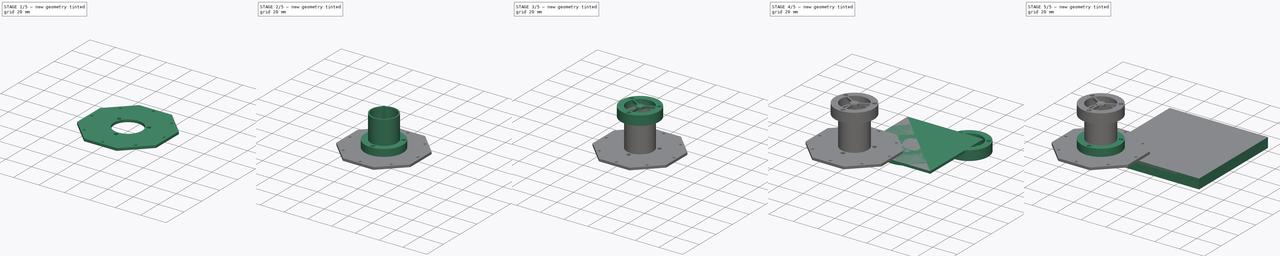
[diagram: build sequence overview — one tinted view per stage of 5, left to right]
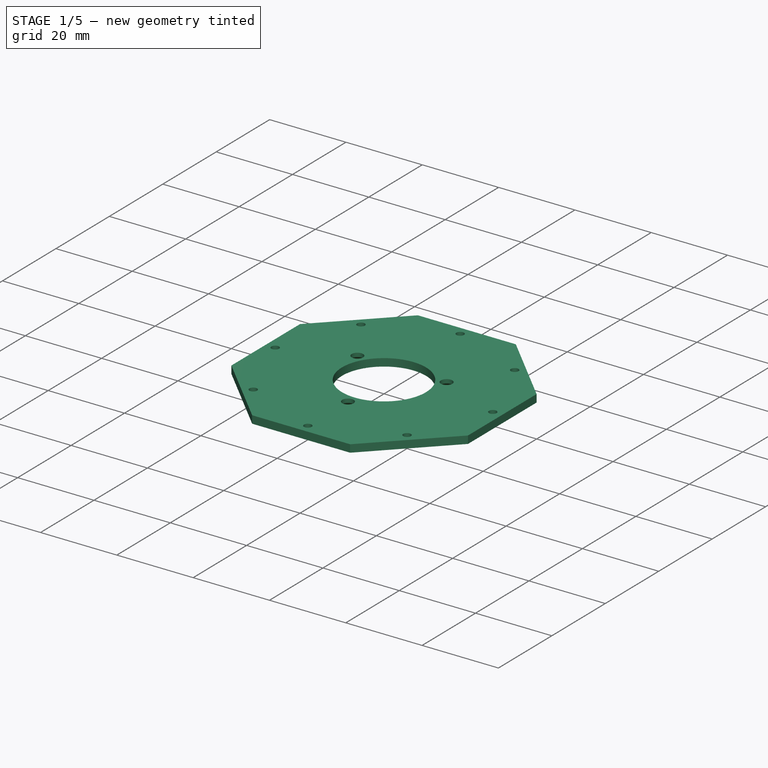
[diagram: stage 1 of 5 — iso view after this stage's code; geometry added in this stage tinted green]
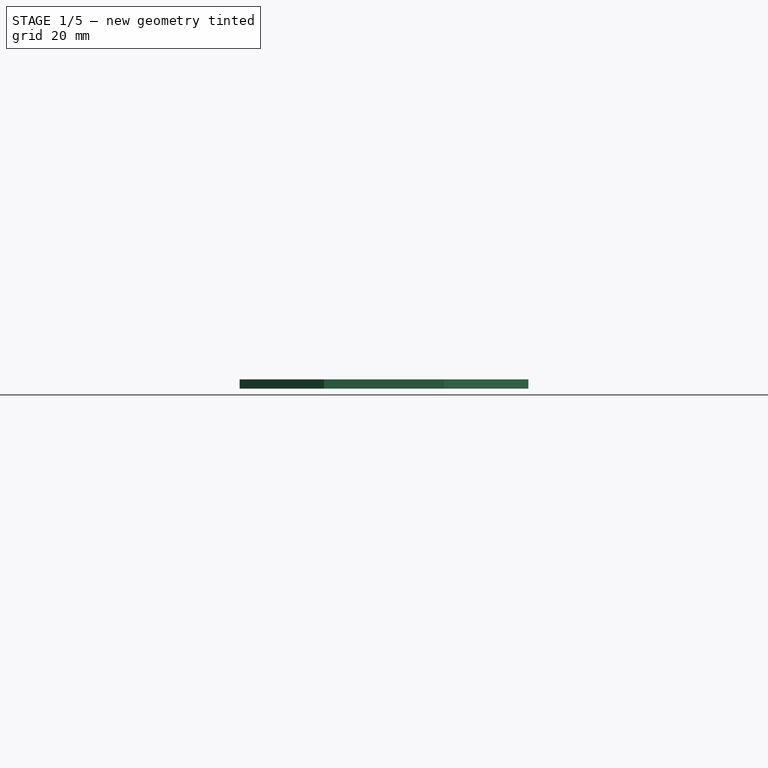
[diagram: stage 1 of 5 — front view after this stage's code; geometry added in this stage tinted green]
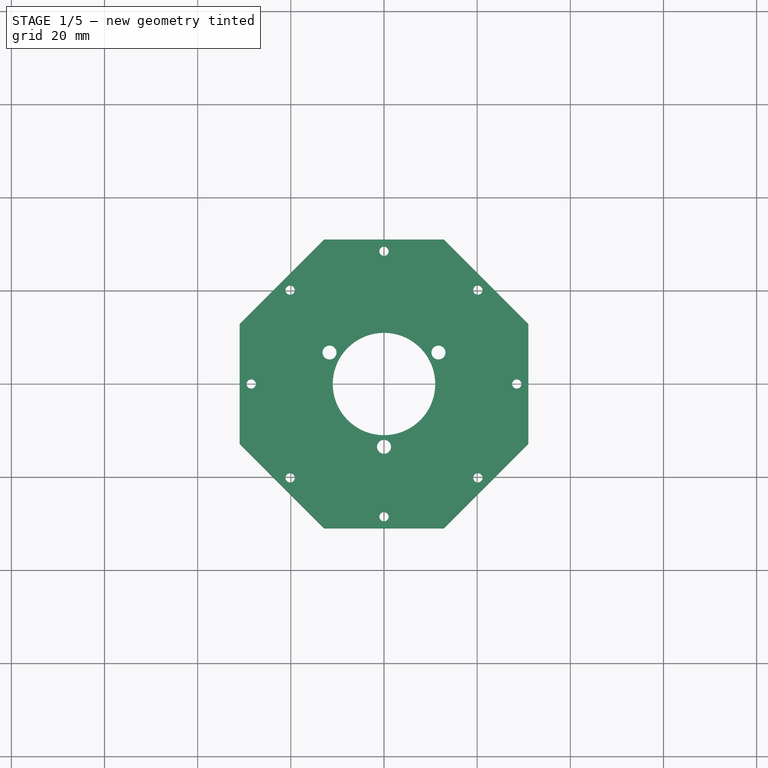
[diagram: stage 1 of 5 — top view after this stage's code; geometry added in this stage tinted green]
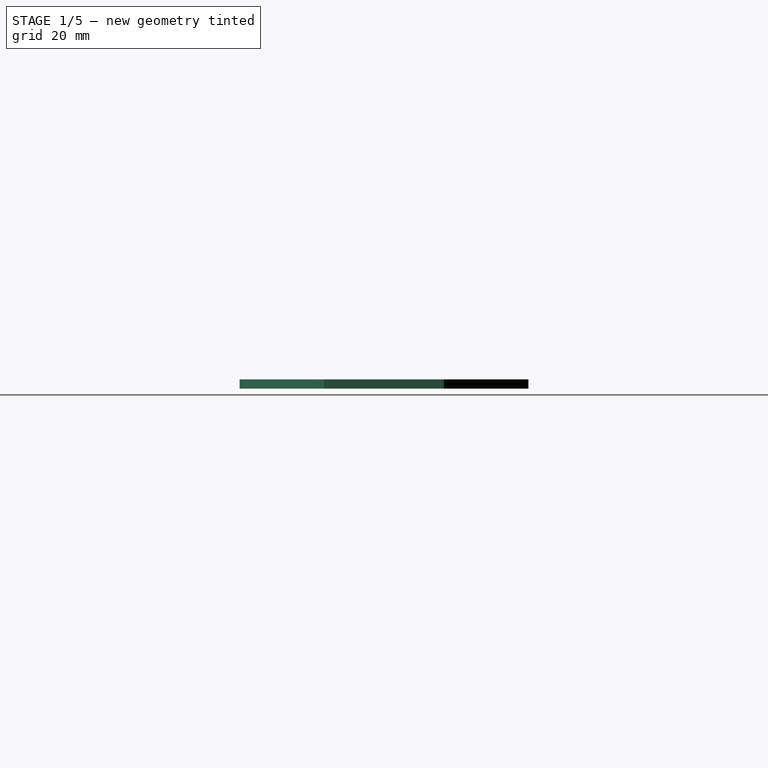
[diagram: stage 1 of 5 — right view after this stage's code; geometry added in this stage tinted green]
FCSTD DOCUMENT  (FreeCAD 0.18R16093 (Git))
Label: Oktagon
License: All rights reserved
LicenseURL: http://en.wikipedia.org/wiki/All_rights_reserved
objects: Path::FeaturePython×27, Sketcher::SketchObject×11, PartDesign::Pad×6, PartDesign::Pocket×5, PartDesign::Body×5, Part::FeaturePython×4, App::FeaturePython×2, App::DocumentObjectGroup×2, Path::FeatureCompoundPython×2, Part::Chamfer×2, Spreadsheet::Sheet×1, Part::Mirroring×1
note: 50 computed .brp shape members not serialized (recipe doc carries the construction recipe); baked Part::Feature solids carry a one-line shape summary decoded from their .brp

FEATURE [Sketcher::SketchObject] Sketch
  MapMode = 5
  Support = -> [XY_Plane]
  expr: Constraints[79] = Parameter.mhr
  expr: Constraints[70] = Parameter.LA
  expr: Constraints[29] = Parameter.OB
  sketch-geometry (34):
    g0: LineSegment StartX=-31 StartY=12.8406 StartZ=0 EndX=-31 EndY=-12.8406 EndZ=0
    g1: LineSegment StartX=-31 StartY=-12.8406 StartZ=0 EndX=-12.8406 EndY=-31 EndZ=0
    g2: LineSegment StartX=-12.8406 StartY=-31 StartZ=0 EndX=12.8406 EndY=-31 EndZ=0
    g3: LineSegment StartX=12.8406 StartY=-31 StartZ=0 EndX=31 EndY=-12.8406 EndZ=0
    g4: LineSegment StartX=31 StartY=-12.8406 StartZ=0 EndX=31 EndY=12.8406 EndZ=0
    g5: LineSegment StartX=31 StartY=12.8406 StartZ=0 EndX=12.8406 EndY=31 EndZ=0
    g6: LineSegment StartX=12.8406 StartY=31 StartZ=0 EndX=-12.8406 EndY=31 EndZ=0
    g7: LineSegment StartX=-12.8406 StartY=31 StartZ=0 EndX=-31 EndY=12.8406 EndZ=0
    g8: LineSegment [constr] StartX=-31 StartY=-12.8406 StartZ=0 EndX=12.8406 EndY=31 EndZ=0
    g9: LineSegment [constr] StartX=-31 StartY=12.8406 StartZ=0 EndX=12.8406 EndY=-31 EndZ=0
    g10: LineSegment [constr] StartX=0 StartY=0 StartZ=0 EndX=20.1525 EndY=-20.1525 EndZ=0
    g11: LineSegment [constr] StartX=0 StartY=0 StartZ=0 EndX=28.5 EndY=0 EndZ=0
    g12: LineSegment [constr] StartX=0 StartY=0 StartZ=0 EndX=20.1525 EndY=20.1525 EndZ=0
    g13: LineSegment [constr] StartX=0 StartY=0 StartZ=0 EndX=0 EndY=28.5 EndZ=0
    g14: LineSegment [constr] StartX=0 StartY=0 StartZ=0 EndX=-20.1525 EndY=20.1525 EndZ=0
    g15: LineSegment [constr] StartX=0 StartY=0 StartZ=0 EndX=-28.5 EndY=0 EndZ=0
    g16: LineSegment [constr] StartX=0 StartY=0 StartZ=0 EndX=-20.1525 EndY=-20.1525 EndZ=0
    g17: LineSegment [constr] StartX=0 StartY=0 StartZ=0 EndX=0 EndY=-28.5 EndZ=0
    g18: LineSegment [constr] StartX=0 StartY=-28.5 StartZ=0 EndX=20.1525 EndY=-20.1525 EndZ=0
    g19: LineSegment [constr] StartX=20.1525 StartY=-20.1525 StartZ=0 EndX=28.5 EndY=0 EndZ=0
    g20: LineSegment [constr] StartX=28.5 StartY=0 StartZ=0 EndX=20.1525 EndY=20.1525 EndZ=0
    g21: LineSegment [constr] StartX=20.1525 StartY=20.1525 StartZ=0 EndX=0 EndY=28.5 EndZ=0
    g22: LineSegment [constr] StartX=0 StartY=28.5 StartZ=0 EndX=-20.1525 EndY=20.1525 EndZ=0
    g23: LineSegment [constr] StartX=-20.1525 StartY=20.1525 StartZ=0 EndX=-28.5 EndY=0 EndZ=0
    g24: LineSegment [constr] StartX=-28.5 StartY=0 StartZ=0 EndX=-20.1525 EndY=-20.1525 EndZ=0
    g25: LineSegment [constr] StartX=-20.1525 StartY=-20.1525 StartZ=0 EndX=0 EndY=-28.5 EndZ=0
    g26: Circle CenterX=28.5 CenterY=0 CenterZ=0 NormalX=0 NormalY=0 NormalZ=1 AngleXU=0 Radius=1
    g27: Circle CenterX=20.1525 CenterY=20.1525 CenterZ=0 NormalX=0 NormalY=0 NormalZ=1 AngleXU=0 Radius=1
    g28: Circle CenterX=0 CenterY=28.5 CenterZ=0 NormalX=0 NormalY=0 NormalZ=1 AngleXU=0 Radius=1
    g29: Circle CenterX=-20.1525 CenterY=20.1525 CenterZ=0 NormalX=0 NormalY=0 NormalZ=1 AngleXU=0 Radius=1
    g30: Circle CenterX=-28.5 CenterY=0 CenterZ=0 NormalX=0 NormalY=0 NormalZ=1 AngleXU=0 Radius=1
    g31: Circle CenterX=-20.1525 CenterY=-20.1525 CenterZ=0 NormalX=0 NormalY=0 NormalZ=1 AngleXU=0 Radius=1
    g32: Circle CenterX=0 CenterY=-28.5 CenterZ=0 NormalX=0 NormalY=0 NormalZ=1 AngleXU=0 Radius=1
    g33: Circle CenterX=20.1525 CenterY=-20.1525 CenterZ=0 NormalX=0 NormalY=0 NormalZ=1 AngleXU=0 Radius=1
  constraints (83):
    c: Coincident(g0,g1)
    c: Coincident(g1,g2)
    c: Coincident(g2,g3)
    c: Coincident(g3,g4)
    c: Coincident(g4,g5)
    c: Coincident(g5,g6)
    c: Coincident(g6,g7)
    c: Coincident(g7,g0)
    c: Equal(g6,g7)
    c: Equal(g6, g0-g4) x5
    c: Equal(g5,g6)
    c: Parallel(g6,g2)
    c: Parallel(g4,g0)
    c: Vertical(g4)
    c: Horizontal(g2)
    c: Symmetric(g4,g3,g-1)
    c: Symmetric(g6,g5,g-2)
    c: Symmetric(g2,g1,g-2)
    c: Symmetric(g0,g0,g-1)
    c: Coincident(g8,g0)
    c: Coincident(g8,g5)
    c: Coincident(g9,g0)
    c: Coincident(g9,g2)
    c: Equal(g8,g9)
    c: Angle(g9,g8) = 1.5708
    c: Distance(g0,g2) = 62
    c: Coincident(g10,g-1)
    c: Coincident(g11,g-1)
    c: Coincident(g12,g-1)
    c: Coincident(g13,g-1)
    c: Coincident(g14,g-1)
    c: Coincident(g15,g-1)
    c: Coincident(g16,g-1)
    c: Coincident(g17,g-1)
    c: Equal(g17,g10)
    c: Equal(g10,g11)
    c: Equal(g11,g12)
    c: Equal(g12,g13)
    c: Equal(g13,g14)
    c: Equal(g14,g15)
    c: Equal(g15,g16)
    c: Equal(g16,g17)
    c: Coincident(g18,g17)
    c: Coincident(g18,g10)
    c: Coincident(g19,g10)
    c: Coincident(g19,g11)
    c: Coincident(g20,g11)
    c: Coincident(g20,g12)
    c: Coincident(g21,g12)
    c: Coincident(g21,g13)
    c: Coincident(g22,g13)
    c: Coincident(g22,g14)
    c: Coincident(g23,g14)
    c: Coincident(g23,g15)
    c: Coincident(g24,g15)
    c: Coincident(g24,g16)
    c: Coincident(g25,g16)
    c: Coincident(g25,g17)
    c: Equal(g18,g19)
    c: Equal(g19,g20)
    c: Equal(g20,g21)
    c: Equal(g21,g22)
    c: Equal(g22,g23)
    c: Equal(g23,g24)
    c: Equal(g24,g25)
    c: Vertical(g17)
    c: Distance(g11,g15) = 57
    c: Coincident(g26,g11)
    c: Coincident(g27,g12)
    c: Coincident(g28,g13)
    c: Coincident(g29,g14)
    c: Coincident(g30,g15)
    c: Coincident(g31,g16)
    c: Coincident(g32,g17)
    c: Coincident(g33,g10)
    c: Radius(g32) = 1
    c: Equal(g32,g33)
    c: Equal(g32,g26)
    c: Equal(g32,g31)
    c: Equal(g32,g30)
    c: Equal(g32,g27)
    c: Equal(g32,g28)
    c: Equal(g32,g29)
FEATURE [Spreadsheet::Sheet] Spreadsheet  label="Parameter"
  cells = A1=Oktagon Breite; B1(OB)=62; A2=Basisplatte hoehe; B2(bph)=2; A3=Rohr AD; B3(RohrAD)=22; C3=Rohwanddicke; D3(rwd)=1; A4=Lochabstand; B4(LA)=57; C4=suction tube diam; D4(std)=2; A5=Mountingholerad; B5(mhr)=1; C5=suction tube ws; D5(stws)=0.2; A6=Rohhalterung extra Radius; B6(rher)=5; A7=Rohrhalterung hoehe; B7(rhh)=1e-05; A8=adapter loch radius; B8(alr)==B3 / 2 + 2.5; A9=RingHoehe; B9(rhe)=8
FEATURE [PartDesign::Pad] Pad
  Length = 2
  Length2 = 100
  Profile = -> Sketch
  Type = 0
  expr: Length = Parameter.bph
FEATURE [Sketcher::SketchObject] Sketch001
  MapMode = 5
  Placement = pos=(0,0,2) rot=(0,0,1;0rad)
  Support = -> [Pad]
  expr: Constraints[1] = Parameter.RohrAD / 2 + Parameter.rher
  sketch-geometry (1):
    g0: Circle CenterX=0 CenterY=0 CenterZ=0 NormalX=0 NormalY=0 NormalZ=1 AngleXU=0 Radius=16
  constraints (2):
    c: Coincident(g0,g-1)
    c: Radius(g0) = 16
FEATURE [PartDesign::Pad] Pad001
  BaseFeature = -> Pad
  Length = 1e-05
  Length2 = 100
  Profile = -> Sketch001
  Type = 0
  expr: Length = Parameter.rhh
FEATURE [Sketcher::SketchObject] Sketch002
  MapMode = 5
  Placement = pos=(0,0,2.00001) rot=(0,0,1;0rad)
  Support = -> [Pad001]
  expr: Constraints[13] = Spreadsheet.alr
  expr: Constraints[1] = Parameter.RohrAD / 2
  sketch-geometry (7):
    g0: Circle CenterX=0 CenterY=0 CenterZ=0 NormalX=0 NormalY=0 NormalZ=1 AngleXU=0 Radius=11
    g1: Circle CenterX=11.6913 CenterY=6.75 CenterZ=0 NormalX=0 NormalY=0 NormalZ=1 AngleXU=0 Radius=1.5
    g2: Circle CenterX=0 CenterY=-13.5 CenterZ=0 NormalX=0 NormalY=0 NormalZ=1 AngleXU=0 Radius=1.5
    g3: Circle CenterX=-11.6913 CenterY=6.75 CenterZ=0 NormalX=0 NormalY=0 NormalZ=1 AngleXU=0 Radius=1.5
    g4: LineSegment [constr] StartX=0 StartY=0 StartZ=0 EndX=11.6913 EndY=6.75 EndZ=0
    g5: LineSegment [constr] StartX=0 StartY=0 StartZ=0 EndX=-11.6913 EndY=6.75 EndZ=0
    g6: LineSegment [constr] StartX=0 StartY=0 StartZ=0 EndX=0 EndY=-13.5 EndZ=0
  constraints (17):
    c: Coincident(g0,g-1)
    c: Radius(g0) = 11
    c: Coincident(g4,g-1)
    c: Coincident(g4,g1)
    c: Coincident(g5,g3)
    c: Coincident(g6,g-1)
    c: Coincident(g6,g2)
    c: Equal(g5,g4)
    c: Coincident(g5,g-1)
    c: Equal(g5,g6)
    c: Vertical(g6)
    c: Angle(g6,g4) = 2.0944
    c: Angle(g5,g6) = 2.0944
    c: Distance(g5) = 13.5
    c: Radius(g2) = 1.5
    c: Equal(g2,g1)
    c: Equal(g2,g3)
FEATURE [PartDesign::Pocket] Pocket
  BaseFeature = -> Pad001
  Length = 2.00001
  Length2 = 100
  Profile = -> Sketch002
  Type = 0
  expr: Length = Parameter.bph + Parameter.rhh
FEATURE [PartDesign::Body] Body004  label="suction tube"
  Group = -> [Sketch010,Pad005]
  Origin = -> Origin004
  Tip = -> Pad005
FEATURE [Part::Chamfer] Chamfer001  label="Base_champfered"
  Base = -> Pocket
  Edges = 3 edges r=1: [Edge17,Edge18,Edge25]
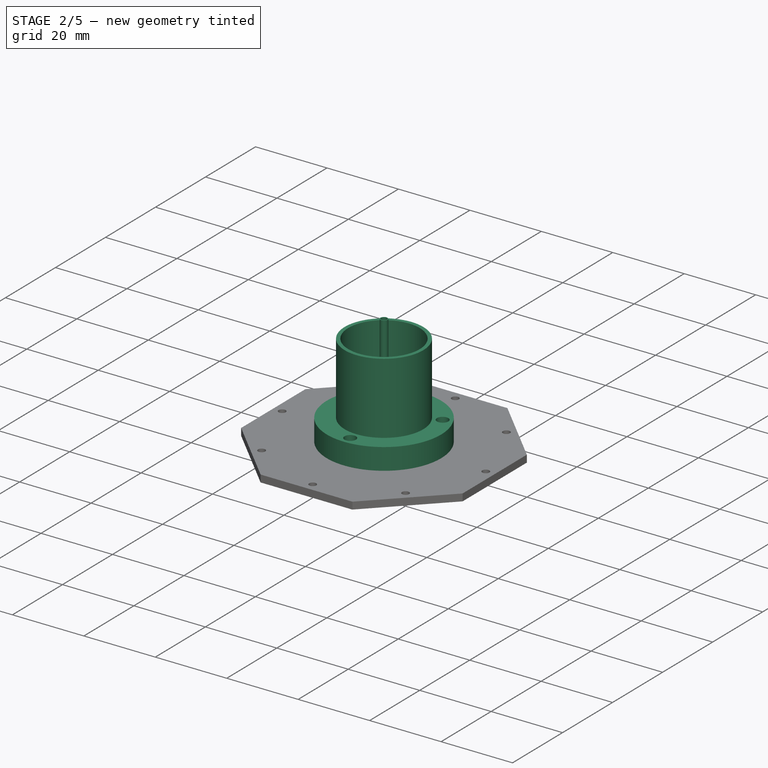
[diagram: stage 2 of 5 — iso view after this stage's code; geometry added in this stage tinted green]
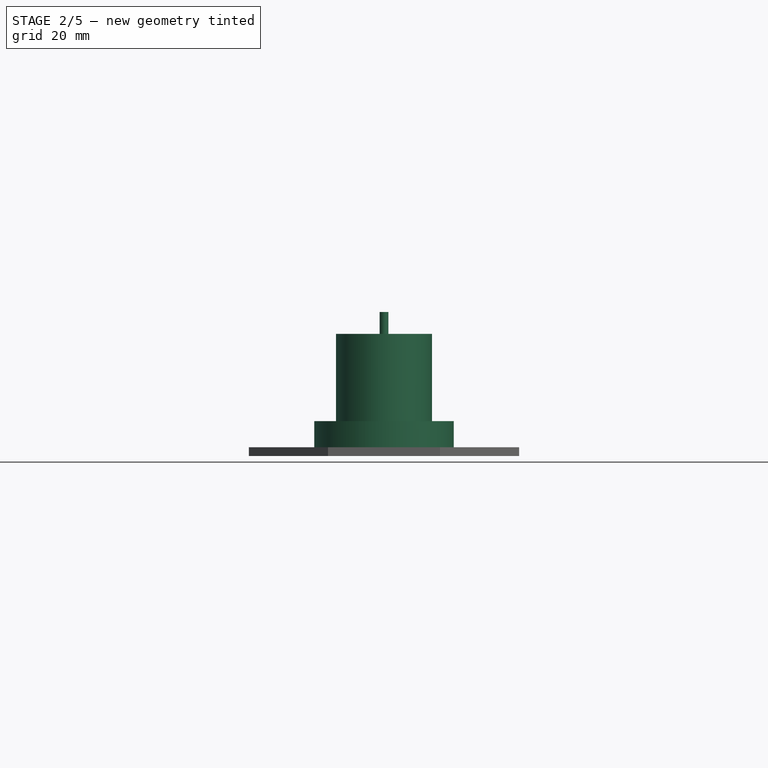
[diagram: stage 2 of 5 — front view after this stage's code; geometry added in this stage tinted green]
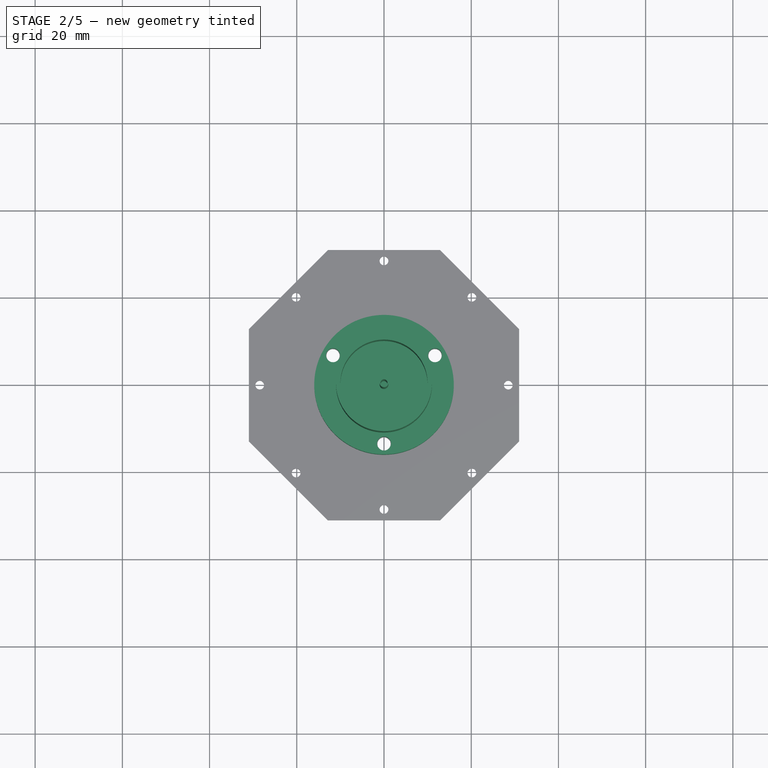
[diagram: stage 2 of 5 — top view after this stage's code; geometry added in this stage tinted green]
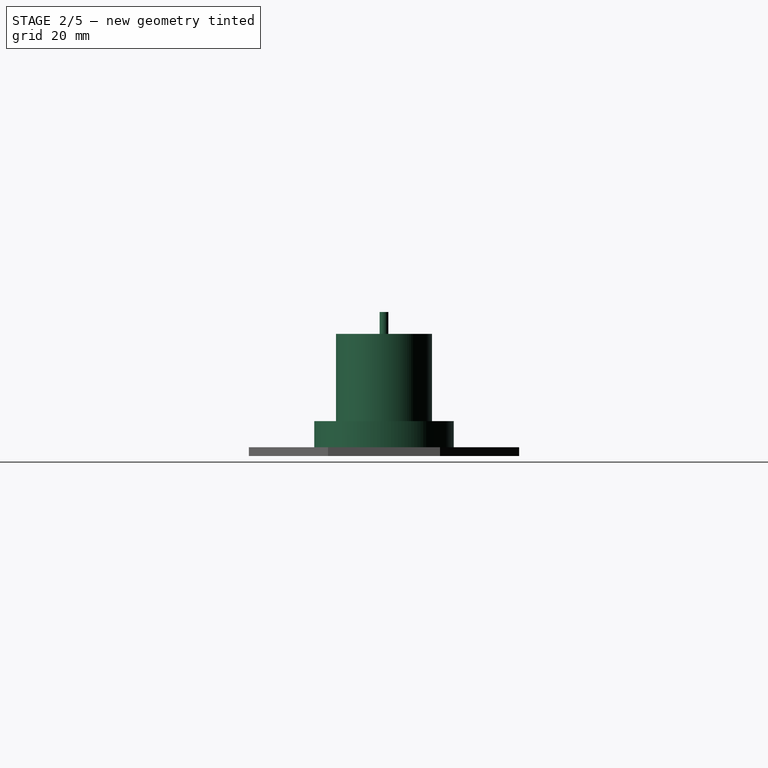
[diagram: stage 2 of 5 — right view after this stage's code; geometry added in this stage tinted green]
FEATURE [Path::FeaturePython] T2__fraiser_one_001  label="T2: fraiser one 001"  # Path/CAM operation (typed FeaturePython)
  HorizFeed = 1
  HorizRapid = 0
  SpindleDir = 0
  SpindleSpeed = 10000
  ToolNumber = 2
  VertFeed = 1
  VertRapid = 0
  expr: HorizRapid = SetupSheet001.HorizRapid
  expr: VertRapid = SetupSheet001.VertRapid
FEATURE [Path::FeaturePython] T9__Drill3mm  label="T9: Drill3mm"  # Path/CAM operation (typed FeaturePython)
  HorizFeed = 10
  HorizRapid = 0
  SpindleDir = 0
  SpindleSpeed = 10000
  ToolNumber = 9
  VertFeed = 3
  VertRapid = 0
  expr: HorizRapid = SetupSheet001.HorizRapid
  expr: VertRapid = SetupSheet001.VertRapid
FEATURE [Path::FeaturePython] Drilling002  # Path/CAM operation (typed FeaturePython)
  Active = true
  AddTipLength = false
  Base = -> [Clone001]
  ClearanceHeight = 4.99999
  DwellEnabled = false
  DwellTime = 0
  FinalDepth = -1
  OpFinalDepth = -1e-05
  OpStartDepth = 0.99999
  OpStockZMax = -1e-05
  OpStockZMin = -2.00001
  OpToolDiameter = 3
  PeckDepth = 0
  PeckEnabled = false
  RetractHeight = 10
  ReturnLevel = 0
  SafeHeight = 2.99999
  StartDepth = 0
  ToolController = -> T9__Drill3mm
  expr: ClearanceHeight = OpStockZMax + SetupSheet001.ClearanceHeightOffset
  expr: SafeHeight = OpStockZMax + SetupSheet001.SafeHeightOffset
FEATURE [Path::FeaturePython] Drilling003  # Path/CAM operation (typed FeaturePython)
  Active = true
  AddTipLength = false
  Base = -> [Clone001]
  ClearanceHeight = 4.99999
  DwellEnabled = false
  DwellTime = 0
  FinalDepth = -3
  OpFinalDepth = 0
  OpStartDepth = 1
  OpStockZMax = -1e-05
  OpStockZMin = -2.00001
  OpToolDiameter = 3
  PeckDepth = 0
  PeckEnabled = false
  RetractHeight = 10
  ReturnLevel = 0
  SafeHeight = 2.99999
  StartDepth = 0
  ToolController = -> T9__Drill3mm
  expr: ClearanceHeight = OpStockZMax + SetupSheet001.ClearanceHeightOffset
  expr: SafeHeight = OpStockZMax + SetupSheet001.SafeHeightOffset
FEATURE [Path::FeaturePython] T14__ching_chang_chin  label="T14: ching chang chin"  # Path/CAM operation (typed FeaturePython)
  HorizFeed = 3
  HorizRapid = 0
  SpindleDir = 0
  SpindleSpeed = 3500
  ToolNumber = 14
  VertFeed = 1
  VertRapid = 0
  expr: HorizRapid = SetupSheet001.HorizRapid
  expr: VertRapid = SetupSheet001.VertRapid
FEATURE [Path::FeaturePython] Profile_Edges  # Path/CAM operation (typed FeaturePython)
  Active = true
  AreaParams:
    OpenMode = 0
    Angle = 45.0
    MinArcPoints = 4
    Coplanar = 0
    Tolerance = 1e-07
    CleanDistance = 0.0
    PocketExtraOffset = 0.0
    RoundPrecision = 0.0
    AngleShift = 0.0
    SubjectFill = 0
    PocketMode = 0
    PocketLastStepover = 0.0
    Simplify = False
    SectionTolerance = 1e-06
    MaxArcPoints = 100
    Offset = -1.27
    Accuracy = 0.01
    LastStepover = 0.0
    PocketStepover = 0.0
    ClipFill = 0
    ToolRadius = 1.0
    Outline = False
    ClipperScale = 10000000.0
    FromCenter = False
    Explode = False
    EndType = 0
    Shift = 0.0
    ExtraPass = 0
    Project = False
    JoinType = 0
    Thicken = False
    Stepdown = 1.0
    SectionMode = 2
    MiterLimit = 2.0
    Deflection = 0.01
    Reorient = True
    FitArcs = True
    SectionCount = -1
    SectionOffset = 0.0
    Stepover = 0.0
    Unit = 1.0
    Fill = 0
  Base = -> [Clone001]
  ClearanceHeight = 4.99999
  Direction = 0
  FinalDepth = -2.1
  JoinType = 0
  MiterLimit = 0.1
  OffsetExtra = 0
  OpFinalDepth = 0
  OpStartDepth = 1.1
  OpStockZMax = -1e-05
  OpStockZMin = -2.00001
  OpToolDiameter = 2.54
  PathParams = {'resume_height': 2.99999, 'feedrate': 3.0, 'verbose': True, 'orientation': 1, 'return_end': True, 'preamble': False, 'retraction': 4.99999, 'feedrate_v': 1.0}
  SafeHeight = 2.99999
  Side = 1
  StartDepth = 0
  StartPoint = (0,0,0)
  StepDown = 1.1
  ToolController = -> T14__ching_chang_chin
  UseComp = true
  UseStartPoint = false
  expr: ClearanceHeight = OpStockZMax + SetupSheet001.ClearanceHeightOffset
  expr: SafeHeight = OpStockZMax + SetupSheet001.SafeHeightOffset
  expr: StepDown = 1.1
FEATURE [Path::FeaturePython] Profile_Faces001  # Path/CAM operation (typed FeaturePython)
  Active = true
  AreaParams:
    OpenMode = 0
    Angle = 45.0
    MinArcPoints = 4
    Coplanar = 0
    Tolerance = 1e-07
    CleanDistance = 0.0
    PocketExtraOffset = 0.0
    RoundPrecision = 0.0
    AngleShift = 0.0
    SubjectFill = 0
    PocketMode = 0
    PocketLastStepover = 0.0
    Simplify = False
    SectionTolerance = 1e-06
    MaxArcPoints = 100
    Offset = 1.27
    Accuracy = 0.01
    LastStepover = 0.0
    PocketStepover = 0.0
    ClipFill = 0
    ToolRadius = 1.0
    Outline = False
    ClipperScale = 10000000.0
    FromCenter = False
    Explode = False
    EndType = 0
    Shift = 0.0
    ExtraPass = 0
    Project = False
    JoinType = 0
    Thicken = False
    Stepdown = 1.0
    SectionMode = 2
    MiterLimit = 2.0
    Deflection = 0.01
    Reorient = True
    FitArcs = True
    SectionCount = -1
    SectionOffset = 0.0
    Stepover = 0.0
    Unit = 1.0
    Fill = 0
  Base = -> [Clone001]
  ClearanceHeight = 4.99999
  Direction = 0
  FinalDepth = -2
  JoinType = 0
  MiterLimit = 0.1
  OffsetExtra = 0
  OpFinalDepth = -1e-05
  OpStartDepth = 0.99999
  OpStockZMax = -1e-05
  OpStockZMin = -2.00001
  OpToolDiameter = 2.54
  PathParams = {'resume_height': 2.99999, 'feedrate': 3.0, 'verbose': True, 'orientation': 1, 'return_end': True, 'preamble': False, 'retraction': 4.99999, 'feedrate_v': 1.0}
  SafeHeight = 2.99999
  Side = 0
  StartDepth = 0
  StartPoint = (0,0,0)
  StepDown = 1
  ToolController = -> T14__ching_chang_chin
  UseComp = true
  UseStartPoint = false
  processCircles = false
  processHoles = false
  processPerimeter = true
  expr: ClearanceHeight = OpStockZMax + SetupSheet001.ClearanceHeightOffset
  expr: SafeHeight = OpStockZMax + SetupSheet001.SafeHeightOffset
  expr: StepDown = 1
FEATURE [Path::FeaturePython] RampEntryDressup003  # Path/CAM operation (typed FeaturePython)
  Angle = 60
  Base = -> Profile_Edges
  CustomFeedRate = 0
  DressupStartDepth = 1.1
  Method = 2
  RampFeedRate = 0
  UseStartDepth = false
FEATURE [Path::FeaturePython] RampEntryDressup004  # Path/CAM operation (typed FeaturePython)
  Angle = 60
  Base = -> Profile_Faces001
  CustomFeedRate = 0
  DressupStartDepth = 0
  Method = 2
  RampFeedRate = 0
  UseStartDepth = false
FEATURE [Path::FeaturePython] TagDressup001  # Path/CAM operation (typed FeaturePython)
  Angle = 45
  Base = -> RampEntryDressup004
  Height = 1
  Positions = (3) [(-1.27,31,0),(53.63,8,0),(8.01,53.64,0)]
  Radius = 0
  SegmentationFactor = 50
  Width = 2
FEATURE [Path::FeatureCompoundPython] Operations001  # Path/CAM operation (typed FeaturePython)
  Group = -> [Drilling002,Drilling003,RampEntryDressup003,TagDressup001]
  UsePlacements = false
FEATURE [Path::FeaturePython] Job001  label="Job_base"  # Path/CAM operation (typed FeaturePython)
  GeometryTolerance = 0.01
  Model = -> Model001
  Operations = -> Operations001
  PostProcessor = 2
  SetupSheet = -> SetupSheet001
  Stock = -> Stock002
  ToolController = -> [Default_Tool001,T2__fraiser_one_001,T9__Drill3mm,T14__ching_chang_chin]
FEATURE [Sketcher::SketchObject] Sketch006
  MapMode = 5
  Support = -> [XY_Plane002]
  expr: Constraints[1] = Spreadsheet.RohrAD / 2 + Spreadsheet.rher
  expr: Constraints[14] = 3.2 / 2
  expr: Constraints[13] = (Spreadsheet.RohrAD + Spreadsheet.rher) / 2
  sketch-geometry (7):
    g0: Circle CenterX=0 CenterY=0 CenterZ=0 NormalX=0 NormalY=0 NormalZ=1 AngleXU=0 Radius=16
    g1: Circle CenterX=0 CenterY=-13.5 CenterZ=0 NormalX=0 NormalY=0 NormalZ=1 AngleXU=0 Radius=1.6
    g2: Circle CenterX=11.6913 CenterY=6.75 CenterZ=0 NormalX=0 NormalY=0 NormalZ=1 AngleXU=0 Radius=1.6
    g3: Circle CenterX=-11.6913 CenterY=6.75 CenterZ=0 NormalX=0 NormalY=0 NormalZ=1 AngleXU=0 Radius=1.6
    g4: LineSegment [constr] StartX=-11.6913 StartY=6.75 StartZ=0 EndX=0 EndY=0 EndZ=0
    g5: LineSegment [constr] StartX=0 StartY=0 StartZ=0 EndX=11.6913 EndY=6.75 EndZ=0
    g6: LineSegment [constr] StartX=0 StartY=-13.5 StartZ=0 EndX=0 EndY=0 EndZ=0
  constraints (17):
    c: Coincident(g0,g-1)
    c: Radius(g0) = 16
    c: PointOnObject(g1,g-2)
    c: Coincident(g4,g3)
    c: Coincident(g4,g-1)
    c: Coincident(g5,g-1)
    c: Coincident(g5,g2)
    c: Coincident(g6,g1)
    c: Coincident(g6,g-1)
    c: Angle(g6,g5) = 2.0944
    c: Angle(g4,g6) = 2.0944
    c: Equal(g6,g5)
    c: Equal(g5,g4)
    c: Distance(g6) = 13.5
    c: Radius(g1) = 1.6
    c: Equal(g1,g2)
    c: Equal(g1,g3)
FEATURE [PartDesign::Pad] Pad003
  Length = 8
  Length2 = 100
  Profile = -> Sketch006
  Type = 0
  expr: Length = Spreadsheet.rhe
FEATURE [Sketcher::SketchObject] Sketch009
  MapMode = 5
  Support = -> [XY_Plane003]
  expr: Constraints[3] = Spreadsheet.RohrAD / 2 - Spreadsheet.rwd
  expr: Constraints[2] = Spreadsheet.RohrAD / 2
  sketch-geometry (2):
    g0: Circle CenterX=0 CenterY=0 CenterZ=0 NormalX=0 NormalY=0 NormalZ=1 AngleXU=0 Radius=10
    g1: Circle CenterX=0 CenterY=0 CenterZ=0 NormalX=0 NormalY=0 NormalZ=1 AngleXU=0 Radius=11
  constraints (4):
    c: Coincident(g0,g-1)
    c: Coincident(g1,g0)
    c: Radius(g1) = 11
    c: Radius(g0) = 10
FEATURE [PartDesign::Pad] Pad004
  Length = 28
  Length2 = 100
  Profile = -> Sketch009
  Type = 0
FEATURE [PartDesign::Body] Body003  label="Smokestack"
  Group = -> [Sketch009,Pad004]
  Origin = -> Origin003
  Placement = pos=(0,0,4) rot=(0,0,1;0rad)
  Tip = -> Pad004
FEATURE [Sketcher::SketchObject] Sketch010
  MapMode = 5
  Support = -> [XY_Plane004]
  expr: Constraints[3] = Spreadsheet.std / 2 - Spreadsheet.stws
  expr: Constraints[2] = Spreadsheet.std / 2
  sketch-geometry (2):
    g0: Circle CenterX=0 CenterY=0 CenterZ=0 NormalX=0 NormalY=0 NormalZ=1 AngleXU=0 Radius=1
    g1: Circle CenterX=0 CenterY=0 CenterZ=0 NormalX=0 NormalY=0 NormalZ=1 AngleXU=0 Radius=0.8
  constraints (4):
    c: Coincident(g0,g-1)
    c: Coincident(g1,g0)
    c: Radius(g0) = 1
    c: Radius(g1) = 0.8
FEATURE [PartDesign::Pad] Pad005
  Length = 33
  Length2 = 100
  Profile = -> Sketch010
  Type = 0
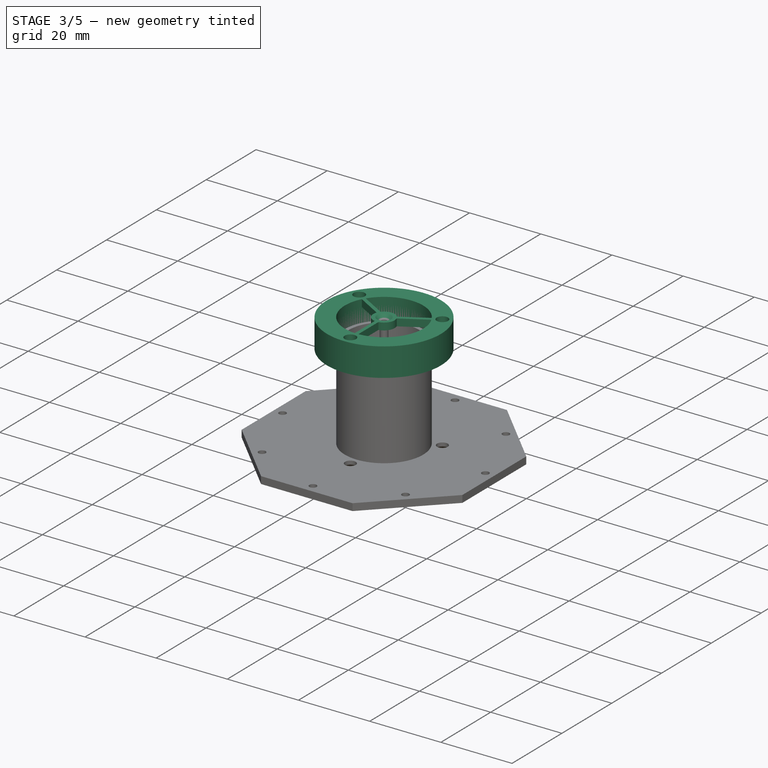
[diagram: stage 3 of 5 — iso view after this stage's code; geometry added in this stage tinted green]
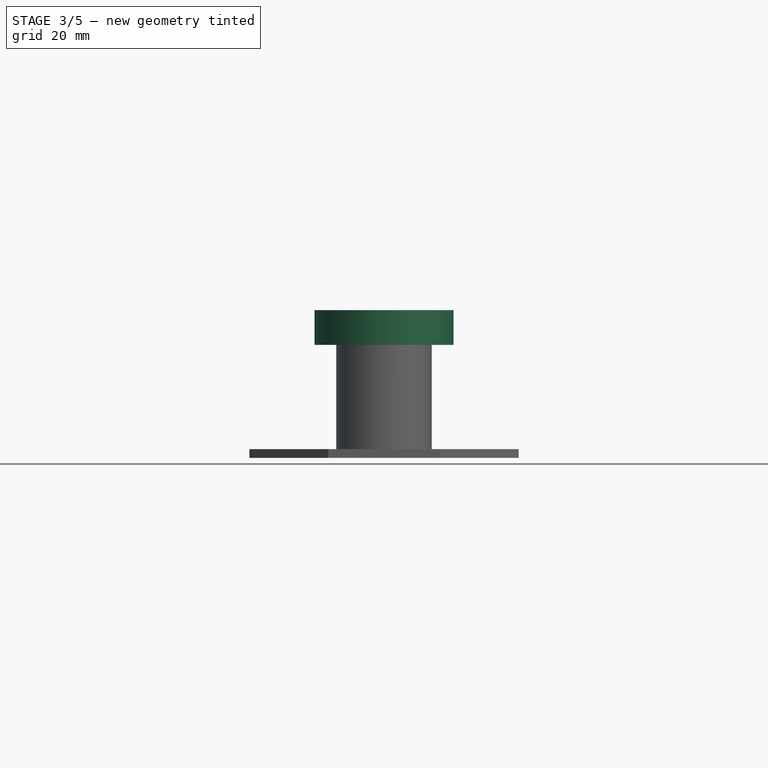
[diagram: stage 3 of 5 — front view after this stage's code; geometry added in this stage tinted green]
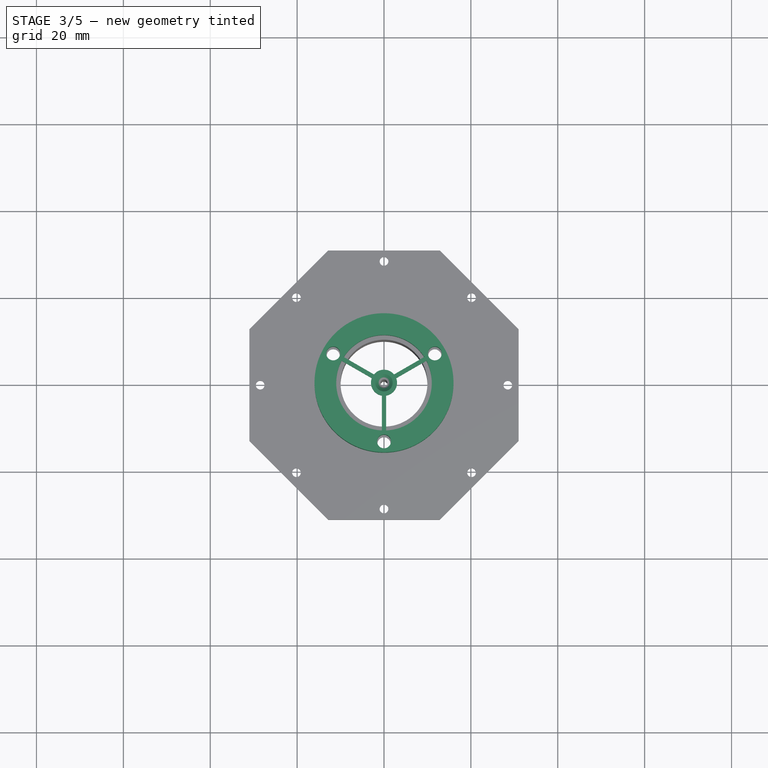
[diagram: stage 3 of 5 — top view after this stage's code; geometry added in this stage tinted green]
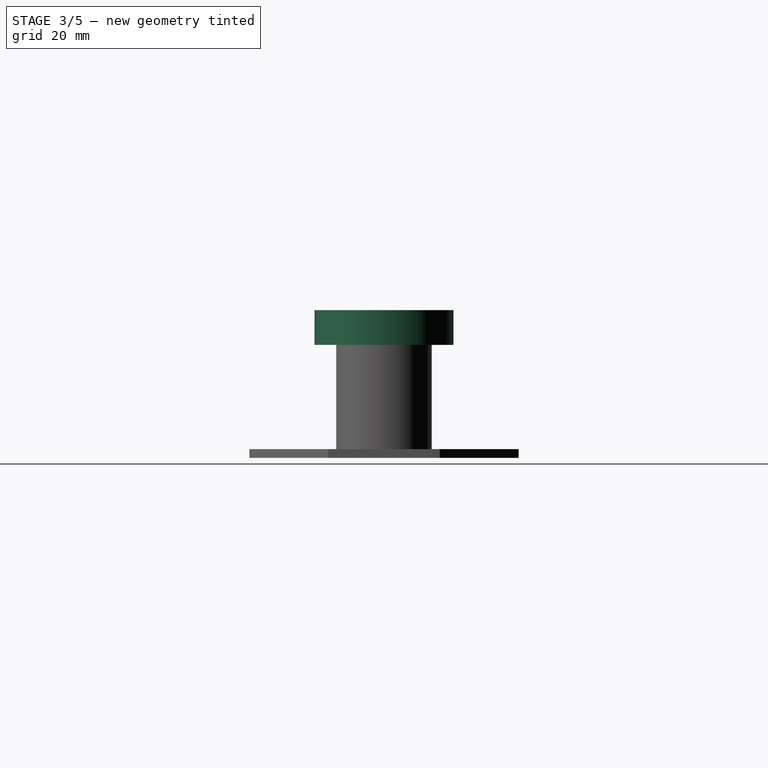
[diagram: stage 3 of 5 — right view after this stage's code; geometry added in this stage tinted green]
FEATURE [Sketcher::SketchObject] Sketch007
  MapMode = 5
  Placement = pos=(0,0,8) rot=(0,0,1;0rad)
  Support = -> [Pad003]
  expr: Constraints[1] = Spreadsheet.RohrAD / 2
  sketch-geometry (1):
    g0: Circle CenterX=0 CenterY=0 CenterZ=0 NormalX=0 NormalY=0 NormalZ=1 AngleXU=0 Radius=11
  constraints (2):
    c: Coincident(g0,g-1)
    c: Radius(g0) = 11
FEATURE [PartDesign::Pocket] Pocket003
  BaseFeature = -> Pad003
  Length = 6
  Length2 = 100
  Profile = -> Sketch007
  Type = 0
  expr: Length = 6
FEATURE [Sketcher::SketchObject] Sketch008
  MapMode = 5
  Placement = pos=(0,0,2) rot=(0,0,1;0rad)
  Support = -> [Pocket003]
  expr: Constraints[14] = Spreadsheet.RohrAD / 2
  expr: Constraints[1] = Spreadsheet.std / 2
  expr: Constraints[10] = Spreadsheet.RohrAD / 2
  sketch-geometry (18):
    g0: Circle CenterX=0 CenterY=0 CenterZ=0 NormalX=0 NormalY=0 NormalZ=1 AngleXU=0 Radius=1
    g1: LineSegment [constr] StartX=0 StartY=0 StartZ=0 EndX=0 EndY=-11 EndZ=0
    g2: LineSegment [constr] StartX=0 StartY=0 StartZ=0 EndX=9.52628 EndY=5.5 EndZ=0
    g3: LineSegment [constr] StartX=0 StartY=0 StartZ=0 EndX=-9.52628 EndY=5.5 EndZ=0
    g4: Circle [constr] CenterX=3e-16 CenterY=0 CenterZ=0 NormalX=0 NormalY=0 NormalZ=1 AngleXU=0 Radius=3
    g5: Circle [constr] CenterX=0 CenterY=0 CenterZ=0 NormalX=0 NormalY=0 NormalZ=1 AngleXU=0 Radius=11
    g6: LineSegment StartX=-9.26643 StartY=5.92733 StartZ=0 EndX=-2.31174 EndY=1.91203 EndZ=0
    g7: LineSegment StartX=-9.76643 StartY=5.0613 StartZ=0 EndX=-2.81174 EndY=1.04601 EndZ=0
    g8: LineSegment StartX=2.31174 StartY=1.91203 StartZ=0 EndX=9.26643 EndY=5.92733 EndZ=0
    g9: LineSegment StartX=2.81174 StartY=1.04601 StartZ=0 EndX=9.76643 EndY=5.0613 EndZ=0
    g10: LineSegment StartX=-0.5 StartY=-2.95804 StartZ=0 EndX=-0.5 EndY=-10.9886 EndZ=0
    g11: LineSegment StartX=0.5 StartY=-10.9886 StartZ=0 EndX=0.5 EndY=-2.95804 EndZ=0
    g12: ArcOfCircle CenterX=0 CenterY=0 CenterZ=0 NormalX=0 NormalY=0 NormalZ=1 AngleXU=0 Radius=3 StartAngle=0.691047 EndAngle=2.45055
    g13: ArcOfCircle CenterX=0 CenterY=5e-16 CenterZ=0 NormalX=0 NormalY=0 NormalZ=1 AngleXU=0 Radius=3 StartAngle=4.87984 EndAngle=6.63934
    g14: ArcOfCircle CenterX=0 CenterY=-3e-16 CenterZ=0 NormalX=0 NormalY=0 NormalZ=1 AngleXU=0 Radius=3 StartAngle=2.78544 EndAngle=4.54494
    g15: ArcOfCircle CenterX=0 CenterY=0 CenterZ=0 NormalX=0 NormalY=0 NormalZ=1 AngleXU=0 Radius=11 StartAngle=0.569069 EndAngle=2.57252
    g16: ArcOfCircle CenterX=0 CenterY=0 CenterZ=0 NormalX=0 NormalY=0 NormalZ=1 AngleXU=0 Radius=11 StartAngle=4.75786 EndAngle=6.76131
    g17: ArcOfCircle CenterX=0 CenterY=0 CenterZ=0 NormalX=0 NormalY=0 NormalZ=1 AngleXU=0 Radius=11 StartAngle=2.66346 EndAngle=4.66692
  constraints (54):
    c: Coincident(g0,g-1)
    c: Radius(g0) = 1
    c: Vertical(g1)
    c: Coincident(g2,g-1)
    c: Coincident(g3,g-1)
    c: Equal(g1,g3)
    c: Equal(g3,g2)
    c: Angle(g1,g2) = 2.0944
    c: Angle(g3,g1) = 2.0944
    c: Coincident(g1,g-1)
    c: Distance(g1) = 11
    c: Coincident(g4,g-1)
    c: Radius(g4) = 3
    c: Coincident(g5,g-1)
    c: Radius(g5) = 11
    c: PointOnObject(g6,g5)
    c: PointOnObject(g6,g4)
    c: PointOnObject(g7,g5)
    c: PointOnObject(g7,g4)
    c: PointOnObject(g8,g4)
    c: PointOnObject(g9,g4)
    c: PointOnObject(g10,g4)
    c: PointOnObject(g11,g5)
    c: PointOnObject(g11,g4)
    c: Parallel(g11,g1)
    c: Parallel(g1,g10)
    c: Parallel(g7,g3)
    c: Parallel(g3,g6)
    c: Parallel(g8,g2)
    c: Parallel(g2,g9)
    c: Distance(g9,g2) = 0.5
    c: Distance(g8,g2) = 0.5
    c: Distance(g11,g1) = 0.5
    c: Distance(g10,g1) = 0.5
    c: Distance(g6,g3) = 0.5
    c: Distance(g7,g3) = 0.5
    c: Coincident(g12,g-1)
    c: Coincident(g12,g8)
    c: Coincident(g12,g6)
    c: Coincident(g13,g-1)
    c: Coincident(g13,g9)
    c: Coincident(g13,g11)
    c: Coincident(g14,g-1)
    c: Coincident(g14,g10)
    c: Coincident(g14,g7)
    c: Coincident(g15,g-1)
    c: Coincident(g15,g6)
    c: Coincident(g15,g8)
    c: Coincident(g16,g-1)
    c: Coincident(g16,g9)
    c: Coincident(g16,g11)
    c: Coincident(g17,g-1)
    c: Coincident(g17,g10)
    c: Coincident(g17,g7)
FEATURE [PartDesign::Pocket] Pocket004
  BaseFeature = -> Pocket003
  Length = 2
  Length2 = 100
  Profile = -> Sketch008
  Type = 0
FEATURE [PartDesign::Body] Body002  label="Adonis_ringbottom"
  Group = -> [Sketch006,Pad003,Sketch007,Pocket003,Sketch008,Pocket004]
  Origin = -> Origin002
  Placement = pos=(0,0,2) rot=(0,0,1;0rad)
  Tip = -> Pocket004
  expr: Placement.Base.z = Spreadsheet.bph
FEATURE [Part::Mirroring] Part__Mirroring  label="Adonis_ringbottom001"
  Base = (0,0,0)
  Normal = (0,0,1)
  Placement = pos=(0,0,2) rot=(0,0,1;0rad)
  Source = -> Body002
FEATURE [Part::Chamfer] Chamfer  label="Adonis_Head"
  Base = -> Part__Mirroring
  Edges = 1 edges r=1: [Edge14]
  Placement = pos=(0,0,34) rot=(0,0,1;0rad)
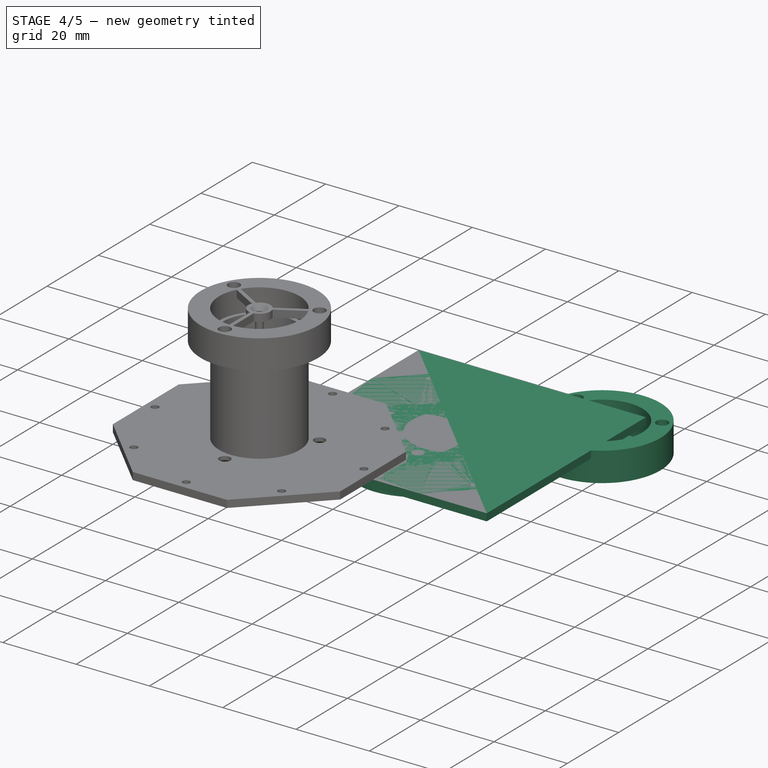
[diagram: stage 4 of 5 — iso view after this stage's code; geometry added in this stage tinted green]
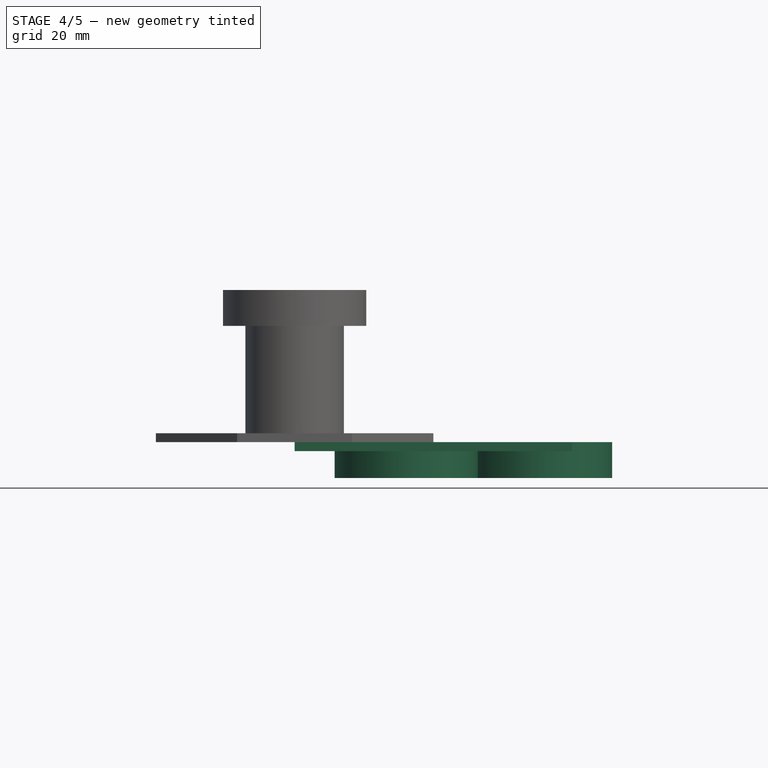
[diagram: stage 4 of 5 — front view after this stage's code; geometry added in this stage tinted green]
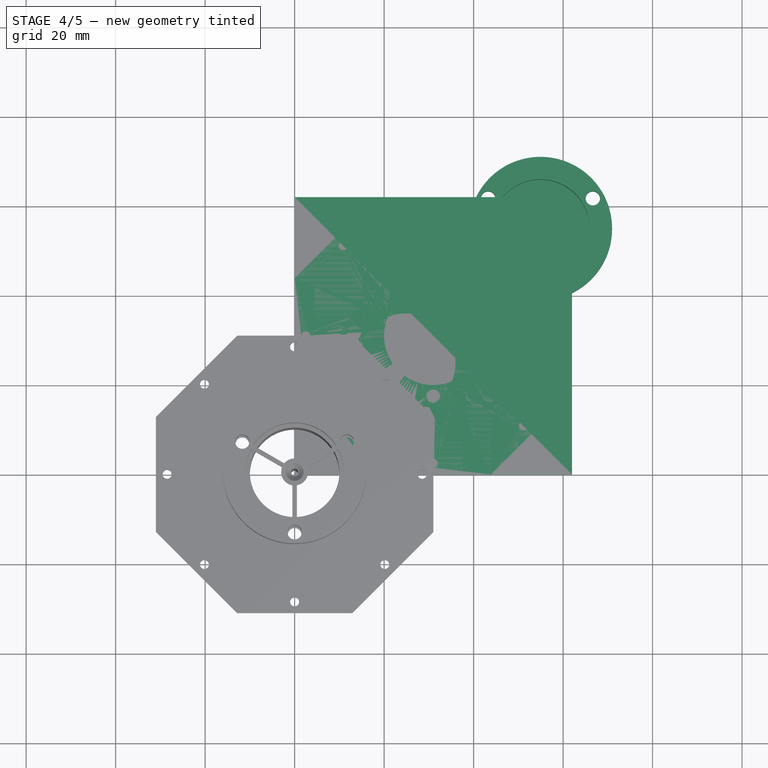
[diagram: stage 4 of 5 — top view after this stage's code; geometry added in this stage tinted green]
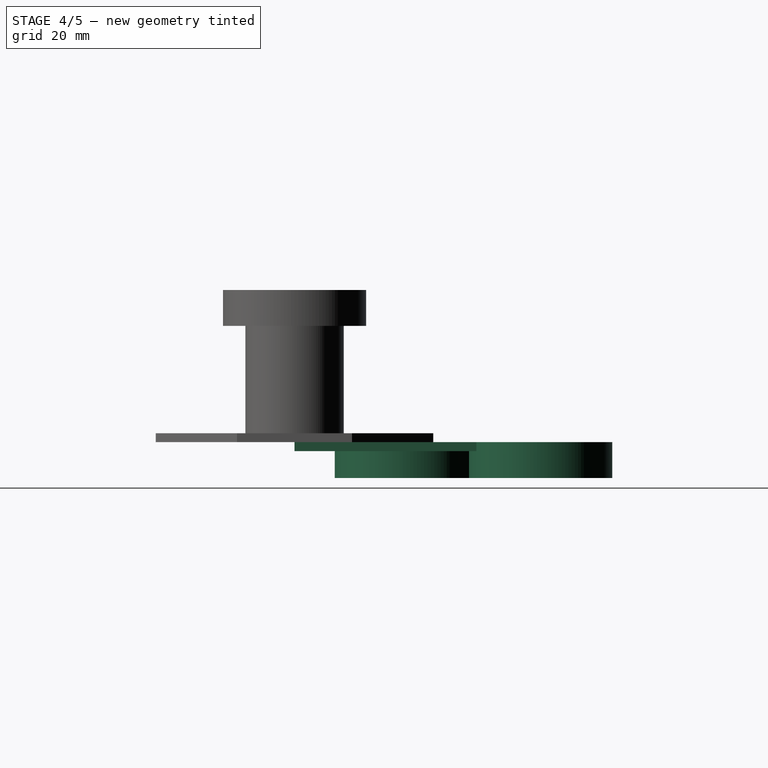
[diagram: stage 4 of 5 — right view after this stage's code; geometry added in this stage tinted green]
FEATURE [PartDesign::Body] Body001  label="Adonis_ring"
  Group = -> [Sketch003,Pad002,Sketch004,Pocket001,Sketch005,Pocket002]
  Origin = -> Origin001
  Placement = pos=(0,0,2) rot=(0,0,1;0rad)
  Tip = -> Pocket002
  expr: Placement.Base.z = Spreadsheet.bph
FEATURE [App::FeaturePython] SetupSheet  # Path/CAM operation (typed FeaturePython)
  ClearanceHeightExpression = OpStockZMax+SetupSheet.ClearanceHeightOffset
  ClearanceHeightOffset = 5
  FinalDepthExpression = OpFinalDepth
  HorizRapid = 0
  SafeHeightExpression = OpStockZMax+SetupSheet.SafeHeightOffset
  SafeHeightOffset = 3
  StartDepthExpression = OpStartDepth
  StepDownExpression = OpToolDiameter
  VertRapid = 0
FEATURE [Part::FeaturePython] Clone  label="Model-Array"  # WARN: FeaturePython — macro-defined, semantics opaque (R4)
  AttacherType = Attacher::AttachEngine3D
  Fuse = false
  PathResource = Model
  Placement = pos=(24.9493,25,-10) rot=(0,0,1;0rad)
  Scale = (1,1,1)
FEATURE [Path::FeaturePython] Drilling  label="centerhole"  # Path/CAM operation (typed FeaturePython)
  Active = true
  AddTipLength = false
  Base = -> [Clone]
  ClearanceHeight = 5
  DwellEnabled = false
  DwellTime = 0
  FinalDepth = -8.3
  OpFinalDepth = -6
  OpStartDepth = 0
  OpStockZMax = 0
  OpStockZMin = -8
  OpToolDiameter = 2
  PeckDepth = 3
  PeckEnabled = true
  RetractHeight = 10
  ReturnLevel = 0
  SafeHeight = 3
  StartDepth = 0
  ToolController = -> T8__2mm_drill
  expr: ClearanceHeight = OpStockZMax + SetupSheet.ClearanceHeightOffset
  expr: SafeHeight = OpStockZMax + SetupSheet.SafeHeightOffset
FEATURE [Path::FeaturePython] Drilling001  label="befest_drll"  # Path/CAM operation (typed FeaturePython)
  Active = true
  AddTipLength = false
  Base = -> [Clone]
  ClearanceHeight = 5
  DwellEnabled = false
  DwellTime = 0
  FinalDepth = -8.3
  OpFinalDepth = 0
  OpStartDepth = 1
  OpStockZMax = 0
  OpStockZMin = -8
  OpToolDiameter = 2.5
  PeckDepth = 0
  PeckEnabled = true
  RetractHeight = 10
  ReturnLevel = 0
  SafeHeight = 3
  StartDepth = 0
  ToolController = -> T7__drill2_5
  expr: ClearanceHeight = OpStockZMax + SetupSheet.ClearanceHeightOffset
  expr: SafeHeight = OpStockZMax + SetupSheet.SafeHeightOffset
FEATURE [Path::FeaturePython] MillFace  # Path/CAM operation (typed FeaturePython)
  Active = true
  AreaParams:
    OpenMode = 0
    Angle = 45.0
    MinArcPoints = 4
    Coplanar = 0
    Tolerance = 1e-07
    CleanDistance = 0.0
    PocketExtraOffset = 0.0
    RoundPrecision = 0.0
    AngleShift = 0.0
    SubjectFill = 0
    PocketMode = 2
    PocketLastStepover = 0.0
    Simplify = False
    SectionTolerance = 1e-06
    MaxArcPoints = 100
    Offset = 0.0
    Accuracy = 0.01
    LastStepover = 0.0
    PocketStepover = 2.975
    ClipFill = 0
    ToolRadius = 2.975
    Outline = False
    ClipperScale = 10000000.0
    FromCenter = True
    Explode = False
    EndType = 0
    Shift = 0.0
    ExtraPass = 0
    Project = False
    JoinType = 0
    Thicken = False
    Stepdown = 1.0
    SectionMode = 2
    MiterLimit = 2.0
    Deflection = 0.01
    Reorient = True
    FitArcs = True
    SectionCount = -1
    SectionOffset = 0.0
    Stepover = 0.0
    Unit = 1.0
    Fill = 0
  Base = -> [Clone]
  BoundaryShape = 0
  ClearanceHeight = 5
  CutMode = 0
  ExtraOffset = 0
  FinalDepth = -6
  FinishDepth = 0
  KeepToolDown = false
  MinTravel = false
  OffsetPattern = 1
  OpFinalDepth = -6
  OpStartDepth = 0
  OpStockZMax = 0
  OpStockZMin = -8
  OpToolDiameter = 5.95
  PathParams = {'resume_height': 3.0, 'feedrate': 1.0, 'verbose': True, 'orientation': 1, 'return_end': True, 'preamble': False, 'retraction': 5.0, 'feedrate_v': 1.0}
  SafeHeight = 3
  StartAt = 0
  StartDepth = 0
  StartPoint = (0,0,0)
  StepDown = 1
  StepOver = 50
  ToolController = -> T2__fraiser_one_
  UseStartPoint = false
  ZigZagAngle = 45
  expr: ClearanceHeight = OpStockZMax + SetupSheet.ClearanceHeightOffset
  expr: SafeHeight = OpStockZMax + SetupSheet.SafeHeightOffset
  expr: StepDown = 1
  expr: FinalDepth = OpFinalDepth
  expr: StartDepth = OpStartDepth
FEATURE [Path::FeaturePython] Pocket_Shape  # Path/CAM operation (typed FeaturePython)
  Active = true
  AreaParams:
    OpenMode = 0
    Angle = 45.0
    MinArcPoints = 4
    Coplanar = 0
    Tolerance = 1e-07
    CleanDistance = 0.0
    PocketExtraOffset = 0.0
    RoundPrecision = 0.0
    AngleShift = 0.0
    SubjectFill = 0
    PocketMode = 2
    PocketLastStepover = 0.0
    Simplify = False
    SectionTolerance = 1e-06
    MaxArcPoints = 100
    Offset = 0.0
    Accuracy = 0.01
    LastStepover = 0.0
    PocketStepover = 1.27
    ClipFill = 0
    ToolRadius = 1.27
    Outline = False
    ClipperScale = 10000000.0
    FromCenter = True
    Explode = False
    EndType = 0
    Shift = 0.0
    ExtraPass = 0
    Project = False
    JoinType = 0
    Thicken = False
    Stepdown = 1.0
    SectionMode = 2
    MiterLimit = 2.0
    Deflection = 0.01
    Reorient = True
    FitArcs = True
    SectionCount = -1
    SectionOffset = 0.0
    Stepover = 0.0
    Unit = 1.0
    Fill = 0
  Base = -> [Clone]
  ClearanceHeight = 5
  CutMode = 0
  ExtraOffset = 0
  FinalDepth = -8.1
  FinishDepth = 0
  KeepToolDown = false
  MinTravel = false
  OffsetPattern = 1
  OpFinalDepth = -7.99
  OpStartDepth = 0
  OpStockZMax = 0
  OpStockZMin = -8
  OpToolDiameter = 2.54
  PathParams = {'resume_height': 3.0, 'feedrate': 1.0, 'verbose': True, 'orientation': 1, 'return_end': True, 'preamble': False, 'retraction': 5.0, 'feedrate_v': 0.5}
  SafeHeight = 3
  StartAt = 0
  StartDepth = -6
  StartPoint = (0,0,0)
  StepDown = 1
  StepOver = 50
  ToolController = -> T14__ching_chang_ching
  UseOutline = false
  UseStartPoint = false
  ZigZagAngle = 45
  expr: ClearanceHeight = OpStockZMax + SetupSheet.ClearanceHeightOffset
  expr: SafeHeight = OpStockZMax + SetupSheet.SafeHeightOffset
  expr: StepDown = 1
FEATURE [Path::FeaturePython] Profile_Faces  # Path/CAM operation (typed FeaturePython)
  Active = true
  AreaParams:
    OpenMode = 0
    Angle = 45.0
    MinArcPoints = 4
    Coplanar = 0
    Tolerance = 1e-07
    CleanDistance = 0.0
    PocketExtraOffset = 0.0
    RoundPrecision = 0.0
    AngleShift = 0.0
    SubjectFill = 0
    PocketMode = 0
    PocketLastStepover = 0.0
    Simplify = False
    SectionTolerance = 1e-06
    MaxArcPoints = 100
    Offset = 2.975
    Accuracy = 0.01
    LastStepover = 0.0
    PocketStepover = 0.0
    ClipFill = 0
    ToolRadius = 1.0
    Outline = False
    ClipperScale = 10000000.0
    FromCenter = False
    Explode = False
    EndType = 0
    Shift = 0.0
    ExtraPass = 0
    Project = False
    JoinType = 0
    Thicken = False
    Stepdown = 1.0
    SectionMode = 2
    MiterLimit = 2.0
    Deflection = 0.01
    Reorient = True
    FitArcs = True
    SectionCount = -1
    SectionOffset = 0.0
    Stepover = 0.0
    Unit = 1.0
    Fill = 0
  Base = -> [Clone]
  ClearanceHeight = 5
  Direction = 0
  FinalDepth = -8.1
  JoinType = 0
  MiterLimit = 0.1
  OffsetExtra = 0
  OpFinalDepth = 0
  OpStartDepth = 2
  OpStockZMax = 0
  OpStockZMin = -8
  OpToolDiameter = 5.95
  PathParams = {'resume_height': 3.0, 'feedrate': 1.0, 'verbose': True, 'orientation': 1, 'return_end': True, 'preamble': False, 'retraction': 5.0, 'feedrate_v': 1.0}
  SafeHeight = 3
  Side = 0
  StartDepth = 0
  StartPoint = (0,0,0)
  StepDown = 2
  ToolController = -> T2__fraiser_one_
  UseComp = true
  UseStartPoint = false
  processCircles = false
  processHoles = false
  processPerimeter = true
  expr: ClearanceHeight = OpStockZMax + SetupSheet.ClearanceHeightOffset
  expr: SafeHeight = OpStockZMax + SetupSheet.SafeHeightOffset
  expr: StepDown = 2
FEATURE [Path::FeaturePython] RampEntryDressup  # Path/CAM operation (typed FeaturePython)
  Angle = 60
  Base = -> MillFace
  CustomFeedRate = 0
  DressupStartDepth = 0
  Method = 2
  RampFeedRate = 0
  UseStartDepth = false
FEATURE [Path::FeaturePython] RampEntryDressup001  # Path/CAM operation (typed FeaturePython)
  Angle = 60
  Base = -> Pocket_Shape
  CustomFeedRate = 0
  DressupStartDepth = -6
  Method = 2
  RampFeedRate = 0
  UseStartDepth = false
FEATURE [Path::FeaturePython] RampEntryDressup002  # Path/CAM operation (typed FeaturePython)
  Angle = 60
  Base = -> Profile_Faces
  CustomFeedRate = 0
  DressupStartDepth = 0
  Method = 2
  RampFeedRate = 0
  UseStartDepth = false
FEATURE [Path::FeaturePython] TagDressup  # Path/CAM operation (typed FeaturePython)
  Angle = 45
  Base = -> RampEntryDressup002
  Disabled = [2]
  Height = 1
  Positions = (7) [(36.72,60.2,-8.1),(59.47,73.42,-8.1),(67.65,69.08,-8.1),(66.49,39.99,-8.1),(43.92,24.91,-8.1),(11.04,12.09,-8.1),(20.03,43.32,-8.1)]
  Radius = 0
  SegmentationFactor = 50
  Width = 4
FEATURE [Path::FeatureCompoundPython] Operations  # Path/CAM operation (typed FeaturePython)
  Group = -> [Drilling,Drilling001,RampEntryDressup,RampEntryDressup001,TagDressup]
  UsePlacements = false
FEATURE [Path::FeaturePython] Job  label="Job_adonisring"  # Path/CAM operation (typed FeaturePython)
  GeometryTolerance = 0.01
  Model = -> Model
  Operations = -> Operations
  PostProcessor = 2
  SetupSheet = -> SetupSheet
  Stock = -> Stock
  ToolController = -> [Default_Tool,T2__fraiser_one_,T14__ching_chang_ching,T8__2mm_drill,T7__drill2_5]
FEATURE [App::FeaturePython] SetupSheet001  # Path/CAM operation (typed FeaturePython)
  ClearanceHeightExpression = OpStockZMax+SetupSheet001.ClearanceHeightOffset
  ClearanceHeightOffset = 5
  FinalDepthExpression = OpFinalDepth
  HorizRapid = 0
  SafeHeightExpression = OpStockZMax+SetupSheet001.SafeHeightOffset
  SafeHeightOffset = 3
  StartDepthExpression = OpStartDepth
  StepDownExpression = OpToolDiameter
  VertRapid = 0
FEATURE [Part::FeaturePython] Clone001  label="Model-Body"  # Draft clone (typed FeaturePython)
  AttacherType = Attacher::AttachEngine3D
  Fuse = false
  Objects = -> [Body]
  PathResource = Model
  Placement = pos=(31,31,-2.00001) rot=(0,0,1;0rad)
  Scale = (1,1,1)
FEATURE [App::DocumentObjectGroup] Model001
  Group = -> [Clone001]
FEATURE [Path::FeaturePython] Default_Tool001  label="Default Tool001"  # Path/CAM operation (typed FeaturePython)
  HorizFeed = 0
  HorizRapid = 0
  SpindleDir = 0
  SpindleSpeed = 0
  ToolNumber = 1
  VertFeed = 0
  VertRapid = 0
  expr: HorizRapid = SetupSheet001.HorizRapid
  expr: VertRapid = SetupSheet001.VertRapid
FEATURE [Part::FeaturePython] Stock002  # WARN: FeaturePython — macro-defined, semantics opaque (R4)
  Height = 2
  Length = 62
  Placement = pos=(0,0,-2.00001) rot=(0,0,1;0rad)
  StockType = CreateBox
  Width = 62
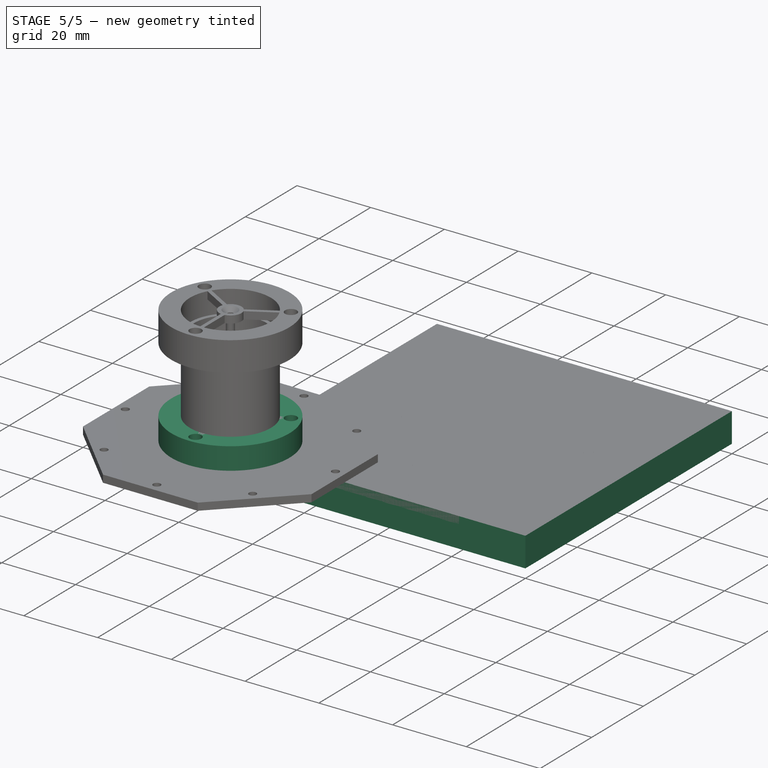
[diagram: stage 5 of 5 — iso view after this stage's code; geometry added in this stage tinted green]
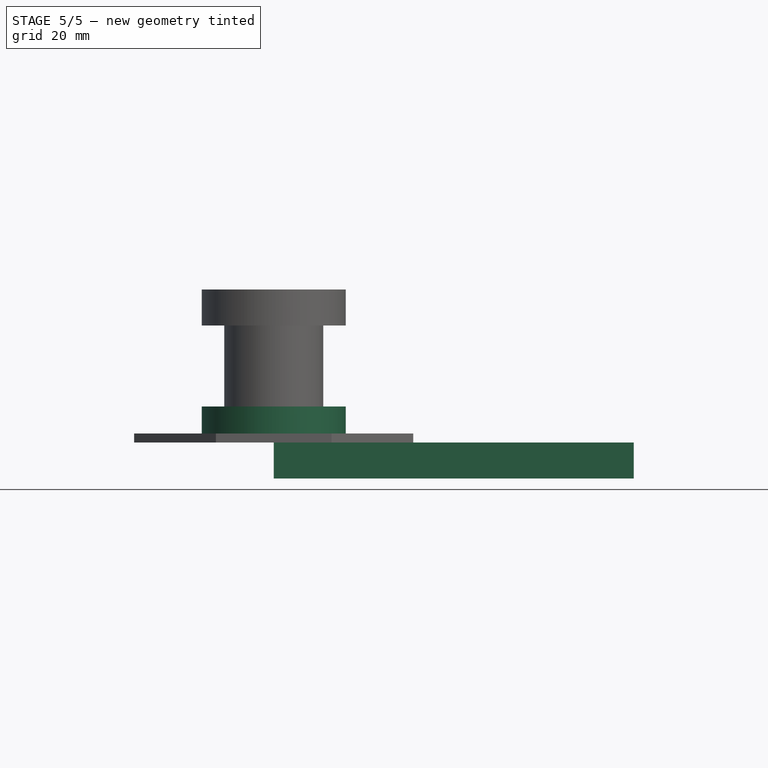
[diagram: stage 5 of 5 — front view after this stage's code; geometry added in this stage tinted green]
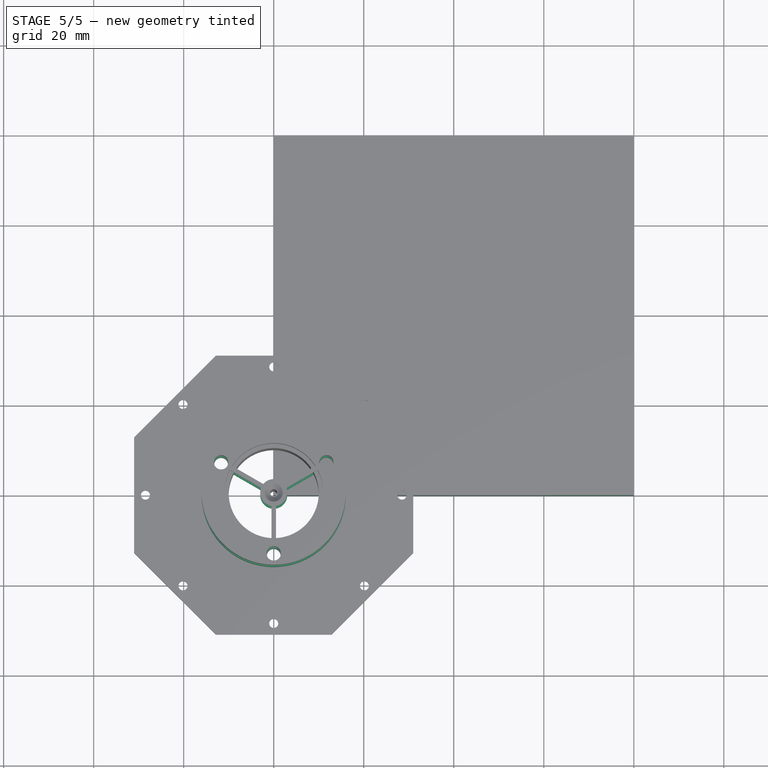
[diagram: stage 5 of 5 — top view after this stage's code; geometry added in this stage tinted green]
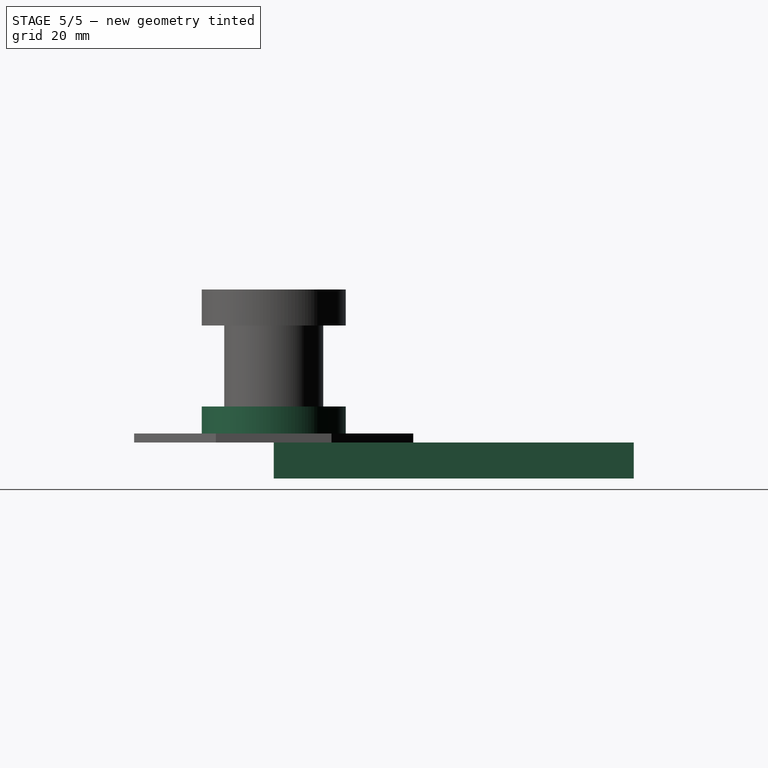
[diagram: stage 5 of 5 — right view after this stage's code; geometry added in this stage tinted green]
FEATURE [PartDesign::Body] Body
  Group = -> [Sketch,Pad,Sketch001,Pad001,Sketch002,Pocket]
  Origin = -> Origin
  Tip = -> Pocket
FEATURE [Sketcher::SketchObject] Sketch003
  MapMode = 5
  Support = -> [XY_Plane001]
  expr: Constraints[1] = Spreadsheet.RohrAD / 2 + Spreadsheet.rher
  expr: Constraints[14] = 3.2 / 2
  expr: Constraints[13] = (Spreadsheet.RohrAD + Spreadsheet.rher) / 2
  sketch-geometry (7):
    g0: Circle CenterX=0 CenterY=0 CenterZ=0 NormalX=0 NormalY=0 NormalZ=1 AngleXU=0 Radius=16
    g1: Circle CenterX=0 CenterY=-13.5 CenterZ=0 NormalX=0 NormalY=0 NormalZ=1 AngleXU=0 Radius=1.6
    g2: Circle CenterX=11.6913 CenterY=6.75 CenterZ=0 NormalX=0 NormalY=0 NormalZ=1 AngleXU=0 Radius=1.6
    g3: Circle CenterX=-11.6913 CenterY=6.75 CenterZ=0 NormalX=0 NormalY=0 NormalZ=1 AngleXU=0 Radius=1.6
    g4: LineSegment [constr] StartX=-11.6913 StartY=6.75 StartZ=0 EndX=0 EndY=0 EndZ=0
    g5: LineSegment [constr] StartX=0 StartY=0 StartZ=0 EndX=11.6913 EndY=6.75 EndZ=0
    g6: LineSegment [constr] StartX=0 StartY=-13.5 StartZ=0 EndX=0 EndY=0 EndZ=0
  constraints (17):
    c: Coincident(g0,g-1)
    c: Radius(g0) = 16
    c: PointOnObject(g1,g-2)
    c: Coincident(g4,g3)
    c: Coincident(g4,g-1)
    c: Coincident(g5,g-1)
    c: Coincident(g5,g2)
    c: Coincident(g6,g1)
    c: Coincident(g6,g-1)
    c: Angle(g6,g5) = 2.0944
    c: Angle(g4,g6) = 2.0944
    c: Equal(g6,g5)
    c: Equal(g5,g4)
    c: Distance(g6) = 13.5
    c: Radius(g1) = 1.6
    c: Equal(g1,g2)
    c: Equal(g1,g3)
FEATURE [PartDesign::Pad] Pad002
  Length = 8
  Length2 = 100
  Profile = -> Sketch003
  Type = 0
  expr: Length = Spreadsheet.rhe
FEATURE [Sketcher::SketchObject] Sketch004
  MapMode = 5
  Placement = pos=(0,0,8) rot=(0,0,1;0rad)
  Support = -> [Pad002]
  expr: Constraints[1] = Spreadsheet.RohrAD / 2
  sketch-geometry (1):
    g0: Circle CenterX=0 CenterY=0 CenterZ=0 NormalX=0 NormalY=0 NormalZ=1 AngleXU=0 Radius=11
  constraints (2):
    c: Coincident(g0,g-1)
    c: Radius(g0) = 11
FEATURE [PartDesign::Pocket] Pocket001
  BaseFeature = -> Pad002
  Length = 6
  Length2 = 100
  Profile = -> Sketch004
  Type = 0
  expr: Length = 6
FEATURE [Sketcher::SketchObject] Sketch005
  MapMode = 5
  Placement = pos=(0,0,2) rot=(0,0,1;0rad)
  Support = -> [Pocket001]
  expr: Constraints[14] = Spreadsheet.RohrAD / 2
  expr: Constraints[1] = Spreadsheet.std / 2
  expr: Constraints[10] = Spreadsheet.RohrAD / 2
  sketch-geometry (18):
    g0: Circle CenterX=0 CenterY=0 CenterZ=0 NormalX=0 NormalY=0 NormalZ=1 AngleXU=0 Radius=1
    g1: LineSegment [constr] StartX=0 StartY=0 StartZ=0 EndX=0 EndY=-11 EndZ=0
    g2: LineSegment [constr] StartX=0 StartY=0 StartZ=0 EndX=9.52628 EndY=5.5 EndZ=0
    g3: LineSegment [constr] StartX=0 StartY=0 StartZ=0 EndX=-9.52628 EndY=5.5 EndZ=0
    g4: Circle [constr] CenterX=3e-16 CenterY=0 CenterZ=0 NormalX=0 NormalY=0 NormalZ=1 AngleXU=0 Radius=3
    g5: Circle [constr] CenterX=0 CenterY=0 CenterZ=0 NormalX=0 NormalY=0 NormalZ=1 AngleXU=0 Radius=11
    g6: LineSegment StartX=-9.26643 StartY=5.92733 StartZ=0 EndX=-2.31174 EndY=1.91203 EndZ=0
    g7: LineSegment StartX=-9.76643 StartY=5.0613 StartZ=0 EndX=-2.81174 EndY=1.04601 EndZ=0
    g8: LineSegment StartX=2.31174 StartY=1.91203 StartZ=0 EndX=9.26643 EndY=5.92733 EndZ=0
    g9: LineSegment StartX=2.81174 StartY=1.04601 StartZ=0 EndX=9.76643 EndY=5.0613 EndZ=0
    g10: LineSegment StartX=-0.5 StartY=-2.95804 StartZ=0 EndX=-0.5 EndY=-10.9886 EndZ=0
    g11: LineSegment StartX=0.5 StartY=-10.9886 StartZ=0 EndX=0.5 EndY=-2.95804 EndZ=0
    g12: ArcOfCircle CenterX=0 CenterY=0 CenterZ=0 NormalX=0 NormalY=0 NormalZ=1 AngleXU=0 Radius=3 StartAngle=0.691047 EndAngle=2.45055
    g13: ArcOfCircle CenterX=0 CenterY=5e-16 CenterZ=0 NormalX=0 NormalY=0 NormalZ=1 AngleXU=0 Radius=3 StartAngle=4.87984 EndAngle=6.63934
    g14: ArcOfCircle CenterX=0 CenterY=-3e-16 CenterZ=0 NormalX=0 NormalY=0 NormalZ=1 AngleXU=0 Radius=3 StartAngle=2.78544 EndAngle=4.54494
    g15: ArcOfCircle CenterX=0 CenterY=0 CenterZ=0 NormalX=0 NormalY=0 NormalZ=1 AngleXU=0 Radius=11 StartAngle=0.569069 EndAngle=2.57252
    g16: ArcOfCircle CenterX=0 CenterY=0 CenterZ=0 NormalX=0 NormalY=0 NormalZ=1 AngleXU=0 Radius=11 StartAngle=4.75786 EndAngle=6.76131
    g17: ArcOfCircle CenterX=0 CenterY=0 CenterZ=0 NormalX=0 NormalY=0 NormalZ=1 AngleXU=0 Radius=11 StartAngle=2.66346 EndAngle=4.66692
  constraints (54):
    c: Coincident(g0,g-1)
    c: Radius(g0) = 1
    c: Vertical(g1)
    c: Coincident(g2,g-1)
    c: Coincident(g3,g-1)
    c: Equal(g1,g3)
    c: Equal(g3,g2)
    c: Angle(g1,g2) = 2.0944
    c: Angle(g3,g1) = 2.0944
    c: Coincident(g1,g-1)
    c: Distance(g1) = 11
    c: Coincident(g4,g-1)
    c: Radius(g4) = 3
    c: Coincident(g5,g-1)
    c: Radius(g5) = 11
    c: PointOnObject(g6,g5)
    c: PointOnObject(g6,g4)
    c: PointOnObject(g7,g5)
    c: PointOnObject(g7,g4)
    c: PointOnObject(g8,g4)
    c: PointOnObject(g9,g4)
    c: PointOnObject(g10,g4)
    c: PointOnObject(g11,g5)
    c: PointOnObject(g11,g4)
    c: Parallel(g11,g1)
    c: Parallel(g1,g10)
    c: Parallel(g7,g3)
    c: Parallel(g3,g6)
    c: Parallel(g8,g2)
    c: Parallel(g2,g9)
    c: Distance(g9,g2) = 0.5
    c: Distance(g8,g2) = 0.5
    c: Distance(g11,g1) = 0.5
    c: Distance(g10,g1) = 0.5
    c: Distance(g6,g3) = 0.5
    c: Distance(g7,g3) = 0.5
    c: Coincident(g12,g-1)
    c: Coincident(g12,g8)
    c: Coincident(g12,g6)
    c: Coincident(g13,g-1)
    c: Coincident(g13,g9)
    c: Coincident(g13,g11)
    c: Coincident(g14,g-1)
    c: Coincident(g14,g10)
    c: Coincident(g14,g7)
    c: Coincident(g15,g-1)
    c: Coincident(g15,g6)
    c: Coincident(g15,g8)
    c: Coincident(g16,g-1)
    c: Coincident(g16,g9)
    c: Coincident(g16,g11)
    c: Coincident(g17,g-1)
    c: Coincident(g17,g10)
    c: Coincident(g17,g7)
FEATURE [PartDesign::Pocket] Pocket002
  BaseFeature = -> Pocket001
  Length = 2
  Length2 = 100
  Profile = -> Sketch005
  Type = 0
FEATURE [App::DocumentObjectGroup] Model
  Group = -> [Clone]
FEATURE [Path::FeaturePython] Default_Tool  label="Default Tool"  # Path/CAM operation (typed FeaturePython)
  HorizFeed = 0
  HorizRapid = 0
  SpindleDir = 0
  SpindleSpeed = 0
  ToolNumber = 1
  VertFeed = 0
  VertRapid = 0
  expr: HorizRapid = SetupSheet.HorizRapid
  expr: VertRapid = SetupSheet.VertRapid
FEATURE [Path::FeaturePython] T2__fraiser_one_  label="T2: fraiser one "  # Path/CAM operation (typed FeaturePython)
  HorizFeed = 1
  HorizRapid = 0
  SpindleDir = 0
  SpindleSpeed = 10000
  ToolNumber = 2
  VertFeed = 1
  VertRapid = 0
  expr: HorizRapid = SetupSheet.HorizRapid
  expr: VertRapid = SetupSheet.VertRapid
FEATURE [Path::FeaturePython] T14__ching_chang_ching  label="T14: ching chang ching"  # Path/CAM operation (typed FeaturePython)
  HorizFeed = 1
  HorizRapid = 0
  SpindleDir = 0
  SpindleSpeed = 10000
  ToolNumber = 14
  VertFeed = 0.5
  VertRapid = 0
  expr: HorizRapid = SetupSheet.HorizRapid
  expr: VertRapid = SetupSheet.VertRapid
FEATURE [Path::FeaturePython] T8__2mm_drill  label="T8: 2mm drill"  # Path/CAM operation (typed FeaturePython)
  HorizFeed = 10
  HorizRapid = 0
  SpindleDir = 0
  SpindleSpeed = 24000
  ToolNumber = 8
  VertFeed = 2
  VertRapid = 0
  expr: HorizRapid = SetupSheet.HorizRapid
  expr: VertRapid = SetupSheet.VertRapid
FEATURE [Path::FeaturePython] T7__drill2_5  label="T7: drill2.5"  # Path/CAM operation (typed FeaturePython)
  HorizFeed = 10
  HorizRapid = 0
  SpindleDir = 0
  SpindleSpeed = 24000
  ToolNumber = 7
  VertFeed = 2
  VertRapid = 0
  expr: HorizRapid = SetupSheet.HorizRapid
  expr: VertRapid = SetupSheet.VertRapid
FEATURE [Part::FeaturePython] Stock  # WARN: FeaturePython — macro-defined, semantics opaque (R4)
  Height = 8
  Length = 80
  Placement = pos=(0,0,-8) rot=(0,0,1;0rad)
  StockType = CreateBox
  Width = 80
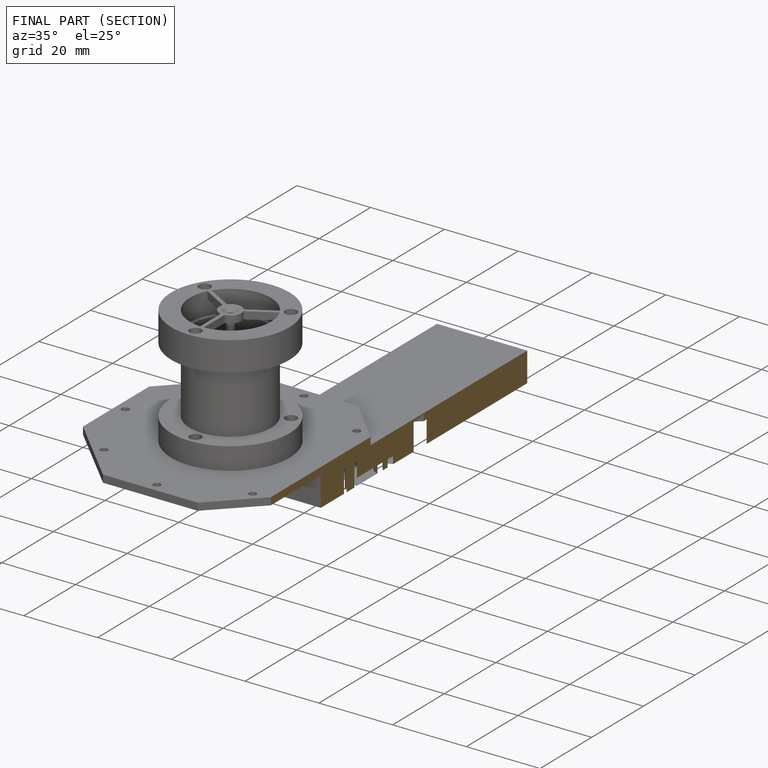
[diagram: finished part — half-section view (interior)]
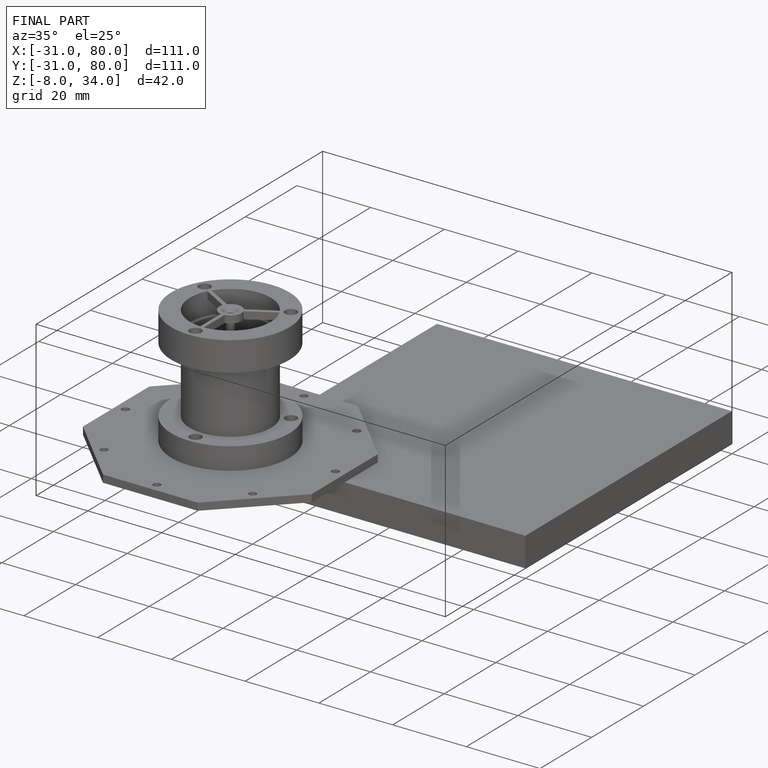
[diagram: finished part — iso view with bounding-box wireframe]
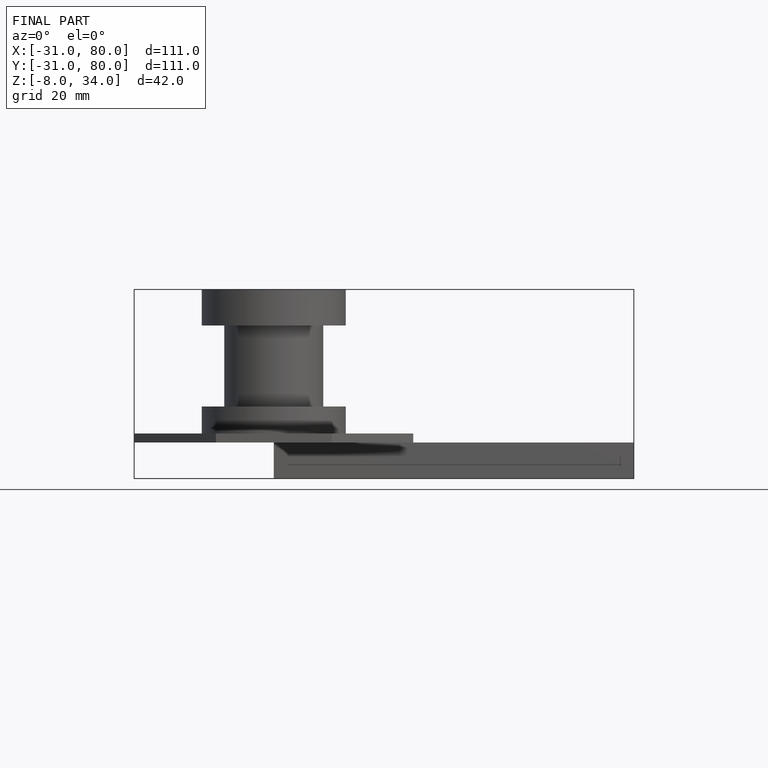
[diagram: finished part — front view with bounding-box wireframe]
